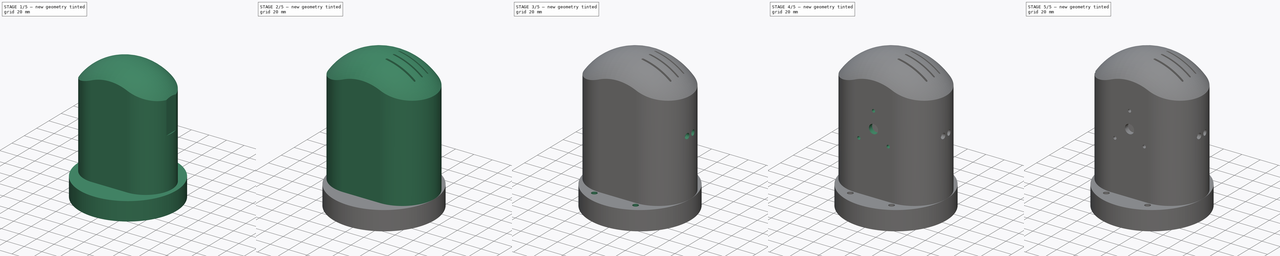
[diagram: build sequence overview — one tinted view per stage of 5, left to right]
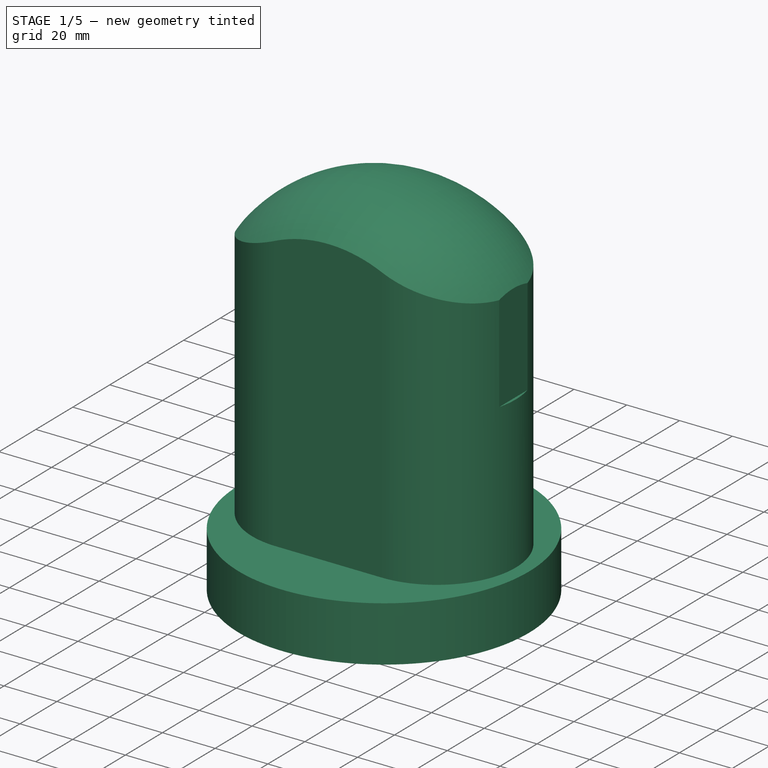
[diagram: stage 1 of 5 — iso view after this stage's code; geometry added in this stage tinted green]
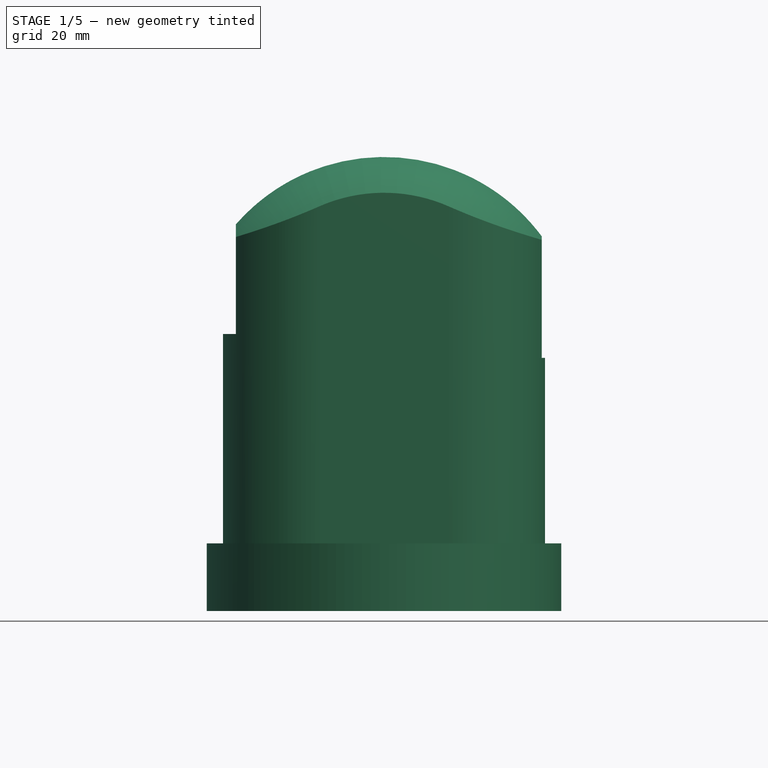
[diagram: stage 1 of 5 — front view after this stage's code; geometry added in this stage tinted green]
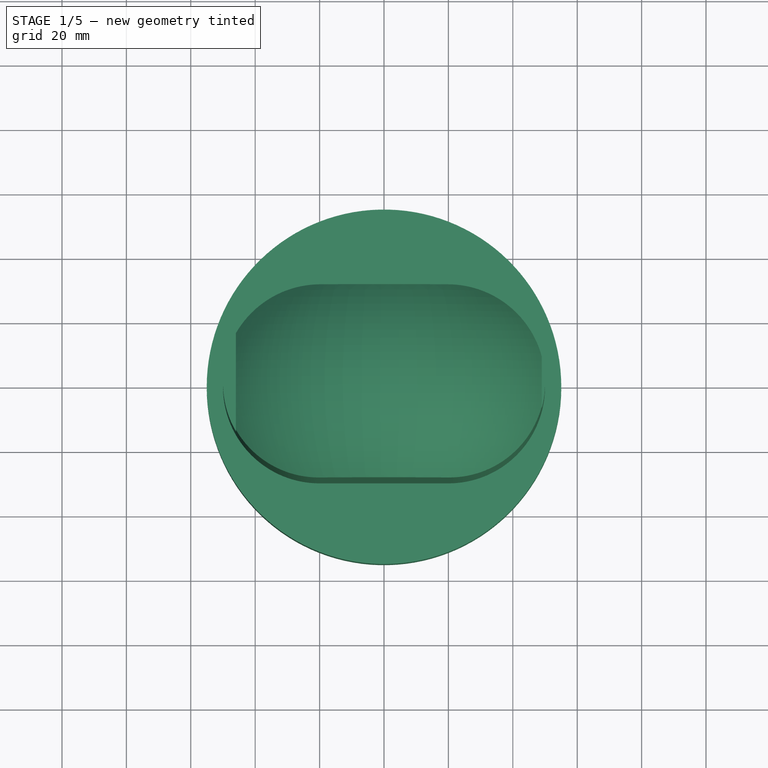
[diagram: stage 1 of 5 — top view after this stage's code; geometry added in this stage tinted green]
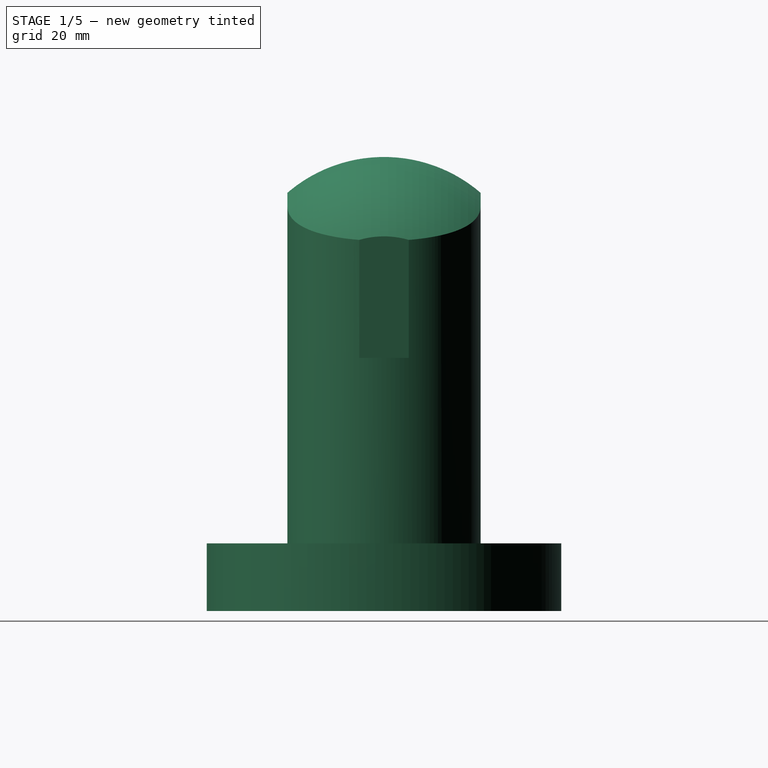
[diagram: stage 1 of 5 — right view after this stage's code; geometry added in this stage tinted green]
FCSTD DOCUMENT  (FreeCAD 0.19R24276 (Git))
Label: Art3Body
License: All rights reserved
LicenseURL: http://en.wikipedia.org/wiki/All_rights_reserved
objects: Sketcher::SketchObject×30, PartDesign::Pocket×19, PartDesign::Line×19, PartDesign::CoordinateSystem×9, PartDesign::Pad×8, PartDesign::Plane×7, PartDesign::Body×3, PartDesign::Groove×2, Part::Cut×1, Spreadsheet::Sheet×1, PartDesign::FeatureBase×1, PartDesign::Revolution×1, PartDesign::Draft×1
note: 132 computed .brp shape members not serialized (recipe doc carries the construction recipe); baked Part::Feature solids carry a one-line shape summary decoded from their .brp

FEATURE [PartDesign::Plane] DatumPlane
  AttachmentOffset = pos=(0,0,86.5) rot=(0,0,1;0rad)
  Length = 60
  MapMode = 5
  Placement = pos=(0,0,86.5) rot=(0,0,1;0rad)
  ResizeMode = 0
  Support = -> [XY_Plane]
  Width = 60
FEATURE [Sketcher::SketchObject] Sketch001
  FullyConstrained = true
  MapMode = 5
  Placement = pos=(0,0,86.5) rot=(0,0,1;0rad)
  Support = -> [DatumPlane]
  sketch-geometry (6):
    g0: ArcOfCircle CenterX=-20 CenterY=0 CenterZ=0 NormalX=0 NormalY=0 NormalZ=1 AngleXU=0 Radius=46 StartAngle=1.5708 EndAngle=4.71239
    g1: LineSegment StartX=-20 StartY=46 StartZ=0 EndX=-20 EndY=51 EndZ=0
    g2: LineSegment StartX=-20 StartY=51 StartZ=0 EndX=-120 EndY=51 EndZ=0
    g3: LineSegment StartX=-120 StartY=51 StartZ=0 EndX=-120 EndY=-51 EndZ=0
    g4: LineSegment StartX=-120 StartY=-51 StartZ=0 EndX=-20 EndY=-51 EndZ=0
    g5: LineSegment StartX=-20 StartY=-51 StartZ=0 EndX=-20 EndY=-46 EndZ=0
  constraints (19):
    c: Vertical(g1)
    c: Coincident(g1,g2)
    c: Horizontal(g2)
    c: Coincident(g2,g3)
    c: Vertical(g3)
    c: Coincident(g3,g4)
    c: Horizontal(g4)
    c: Coincident(g4,g5)
    c: Equal(g5,g1)
    c: Coincident(g1,g0)
    c: DistanceX(g0,g-1) = 20
    c: DistanceX(g4,g4) = 100
    c: PointOnObject(g0,g-1)
    c: Coincident(g0,g5)
    c: PointOnObject(g0,g1)
    c: Radius(g0) = 46
    c: DistanceY(g5,g5) = 5
    c: Vertical(g5)
    c: Equal(g4,g2)
FEATURE [Sketcher::SketchObject] Sketch002
  FullyConstrained = true
  MapMode = 5
  Support = -> [XY_Plane]
  sketch-geometry (1):
    g0: Circle CenterX=0 CenterY=0 CenterZ=0 NormalX=0 NormalY=0 NormalZ=1 AngleXU=0 Radius=55.05
  constraints (2):
    c: Coincident(g0,g-1)
    c: Radius(g0) = 55.05
FEATURE [PartDesign::Pad] Pad
  Direction = (1,1,1)
  Length = 21
  Length2 = 100
  Profile = -> Sketch002
  Refine = true
  Type = 0
FEATURE [PartDesign::Body] Body
  Group = -> [Sketch,DatumPlane,Sketch001,Sketch002,Pad,Pad001,Groove]
  Origin = -> Origin
  Tip = -> Groove
FEATURE [Sketcher::SketchObject] Sketch003
  FullyConstrained = true
  MapMode = 5
  Support = -> [XY_Plane001]
  sketch-geometry (1):
    g0: Circle CenterX=0 CenterY=0 CenterZ=0 NormalX=0 NormalY=0 NormalZ=1 AngleXU=0 Radius=50.2
  constraints (2):
    c: Coincident(g0,g-1)
    c: Radius(g0) = 50.2
FEATURE [PartDesign::Pad] Pad002
  Direction = (1,1,1)
  Length = 7
  Length2 = 100
  Profile = -> Sketch003
  Refine = true
  Type = 0
FEATURE [Sketcher::SketchObject] Sketch004
  FullyConstrained = true
  MapMode = 5
  Placement = pos=(0,0,7) rot=(0,0,1;0rad)
  Support = -> [Pad002]
  sketch-geometry (4):
    g0: ArcOfCircle CenterX=0 CenterY=0 CenterZ=0 NormalX=0 NormalY=0 NormalZ=1 AngleXU=0 Radius=40.5 StartAngle=1.69457 EndAngle=7.73021
    g1: LineSegment StartX=-5 StartY=40.1902 StartZ=0 EndX=-5 EndY=47 EndZ=0
    g2: LineSegment StartX=-5 StartY=47 StartZ=0 EndX=5 EndY=47 EndZ=0
    g3: LineSegment StartX=5 StartY=47 StartZ=0 EndX=5 EndY=40.1902 EndZ=0
  constraints (11):
    c: Vertical(g1)
    c: Coincident(g1,g2)
    c: Coincident(g2,g3)
    c: Vertical(g3)
    c: Coincident(g3,g0)
    c: Coincident(g0,g1)
    c: Symmetric(g2,g1,g-2)
    c: DistanceX(g2,g2) = 10
    c: DistanceY(g-1,g2) = 47
    c: Coincident(g0,g-1)
    c: Radius(g0) = 40.5
FEATURE [PartDesign::Pad] Pad003
  BaseFeature = -> Pad002
  Direction = (1,1,1)
  Length = 6
  Length2 = 100
  Profile = -> Sketch004
  Refine = true
  Type = 0
FEATURE [Sketcher::SketchObject] Sketch005
  FullyConstrained = true
  MapMode = 5
  Placement = pos=(0,0,7) rot=(0,0,1;0rad)
  Support = -> [Pad003]
  sketch-geometry (4):
    g0: ArcOfCircle CenterX=-20 CenterY=0 CenterZ=0 NormalX=0 NormalY=0 NormalZ=1 AngleXU=0 Radius=30 StartAngle=1.5708 EndAngle=4.71239
    g1: ArcOfCircle CenterX=20 CenterY=0 CenterZ=0 NormalX=0 NormalY=0 NormalZ=1 AngleXU=0 Radius=30 StartAngle=4.71239 EndAngle=7.85398
    g2: LineSegment StartX=-20 StartY=-30 StartZ=0 EndX=20 EndY=-30 EndZ=0
    g3: LineSegment StartX=-20 StartY=30 StartZ=0 EndX=20 EndY=30 EndZ=0
  constraints (9):
    c: Tangent(g0,g3) = 1.5708
    c: Tangent(g0,g2) = -1.5708
    c: Tangent(g2,g1) = -1.5708
    c: Tangent(g3,g1) = 1.5708
    c: Horizontal(g2)
    c: PointOnObject(g0,g-1)
    c: DistanceX(g2,g2) = 40
    c: Symmetric(g1,g0,g-2)
    c: Radius(g0) = 30
FEATURE [PartDesign::Pad] Pad004
  BaseFeature = -> Pad003
  Direction = (1,1,1)
  Length = 139
  Length2 = 100
  Profile = -> Sketch005
  Refine = true
  Type = 0
FEATURE [PartDesign::Plane] DatumPlane001
  AttachmentOffset = pos=(0,0,80) rot=(0,0,1;0rad)
  Length = 120.446
  MapMode = 5
  Placement = pos=(0,0,80) rot=(0,0,1;0rad)
  ResizeMode = 0
  Support = -> [XY_Plane001]
  Width = 120.103
FEATURE [Sketcher::SketchObject] Sketch006
  FullyConstrained = true
  MapMode = 5
  Placement = pos=(0,0,80) rot=(0,0,1;0rad)
  Support = -> [DatumPlane001]
  sketch-geometry (6):
    g0: ArcOfCircle CenterX=-15 CenterY=0 CenterZ=0 NormalX=0 NormalY=0 NormalZ=1 AngleXU=0 Radius=46 StartAngle=1.5708 EndAngle=4.71239
    g1: LineSegment StartX=-15 StartY=46 StartZ=0 EndX=-15 EndY=51 EndZ=0
    g2: LineSegment StartX=-15 StartY=51 StartZ=0 EndX=-115 EndY=51 EndZ=0
    g3: LineSegment StartX=-115 StartY=51 StartZ=0 EndX=-115 EndY=-51 EndZ=0
    g4: LineSegment StartX=-115 StartY=-51 StartZ=0 EndX=-15 EndY=-51 EndZ=0
    g5: LineSegment StartX=-15 StartY=-51 StartZ=0 EndX=-15 EndY=-46 EndZ=0
  constraints (19):
    c: Vertical(g1)
    c: Coincident(g1,g2)
    c: Horizontal(g2)
    c: Coincident(g2,g3)
    c: Vertical(g3)
    c: Coincident(g3,g4)
    c: Horizontal(g4)
    c: Coincident(g4,g5)
    c: Coincident(g5,g0)
    c: Vertical(g5)
    c: Equal(g5,g1)
    c: Coincident(g1,g0)
    c: Equal(g2,g4)
    c: Radius(g0) = 46
    c: DistanceY(g1,g1) = 5
    c: DistanceX(g4,g4) = 100
    c: DistanceX(g0,g-1) = 15
    c: PointOnObject(g0,g5)
    c: PointOnObject(g0,g-1)
FEATURE [PartDesign::Groove] Groove001
  Angle = 180
  Axis = (0,1,0)
  Base = (0,0,80)
  BaseFeature = -> Pad004
  Profile = -> Sketch006
  ReferenceAxis = -> Sketch006 [V_Axis]
  Refine = true
FEATURE [PartDesign::Plane] DatumPlane002
  AttachmentOffset = pos=(0,0,140) rot=(0,0,1;0rad)
  Length = 120.446
  MapMode = 5
  Placement = pos=(0,0,140) rot=(0,0,1;0rad)
  ResizeMode = 0
  Support = -> [XY_Plane001]
  Width = 120.103
FEATURE [Sketcher::SketchObject] Sketch007
  FullyConstrained = true
  MapMode = 5
  Placement = pos=(0,0,140) rot=(0,0,1;0rad)
  Support = -> [DatumPlane002]
  sketch-geometry (4):
    g0: LineSegment StartX=-56 StartY=25 StartZ=0 EndX=-46 EndY=25 EndZ=0
    g1: LineSegment StartX=-46 StartY=25 StartZ=0 EndX=-46 EndY=-25 EndZ=0
    g2: LineSegment StartX=-46 StartY=-25 StartZ=0 EndX=-56 EndY=-25 EndZ=0
    g3: LineSegment StartX=-56 StartY=-25 StartZ=0 EndX=-56 EndY=25 EndZ=0
  constraints (11):
    c: Coincident(g0,g1)
    c: Coincident(g1,g2)
    c: Coincident(g2,g3)
    c: Coincident(g3,g0)
    c: Horizontal(g0)
    c: Horizontal(g2)
    c: Vertical(g3)
    c: Symmetric(g1,g0,g-1)
    c: DistanceX(g1,g-1) = 46
    c: DistanceX(g2,g2) = 10
    c: DistanceY(g3,g3) = 50
FEATURE [PartDesign::Pocket] Pocket
  BaseFeature = -> Groove001
  Length = 54
  Length2 = 100
  Profile = -> Sketch007
  Refine = true
  Type = 0
FEATURE [Sketcher::SketchObject] Sketch008
  FullyConstrained = true
  MapMode = 5
  Placement = pos=(0,0,140) rot=(0,0,1;0rad)
  Support = -> [DatumPlane002]
  sketch-geometry (4):
    g0: LineSegment StartX=59 StartY=25 StartZ=0 EndX=49 EndY=25 EndZ=0
    g1: LineSegment StartX=49 StartY=25 StartZ=0 EndX=49 EndY=-25 EndZ=0
    g2: LineSegment StartX=49 StartY=-25 StartZ=0 EndX=59 EndY=-25 EndZ=0
    g3: LineSegment StartX=59 StartY=-25 StartZ=0 EndX=59 EndY=25 EndZ=0
  constraints (11):
    c: Coincident(g0,g1)
    c: Coincident(g1,g2)
    c: Coincident(g2,g3)
    c: Coincident(g3,g0)
    c: Horizontal(g0)
    c: Horizontal(g2)
    c: Vertical(g1)
    c: DistanceY(g3,g3) = 50
    c: DistanceX(g2,g2) = 10
    c: DistanceX(g-1,g1) = 49
    c: Symmetric(g2,g0,g-1)
FEATURE [PartDesign::Pocket] Pocket001
  BaseFeature = -> Pocket
  Length = 61.4
  Length2 = 100
  Profile = -> Sketch008
  Refine = true
  Type = 0
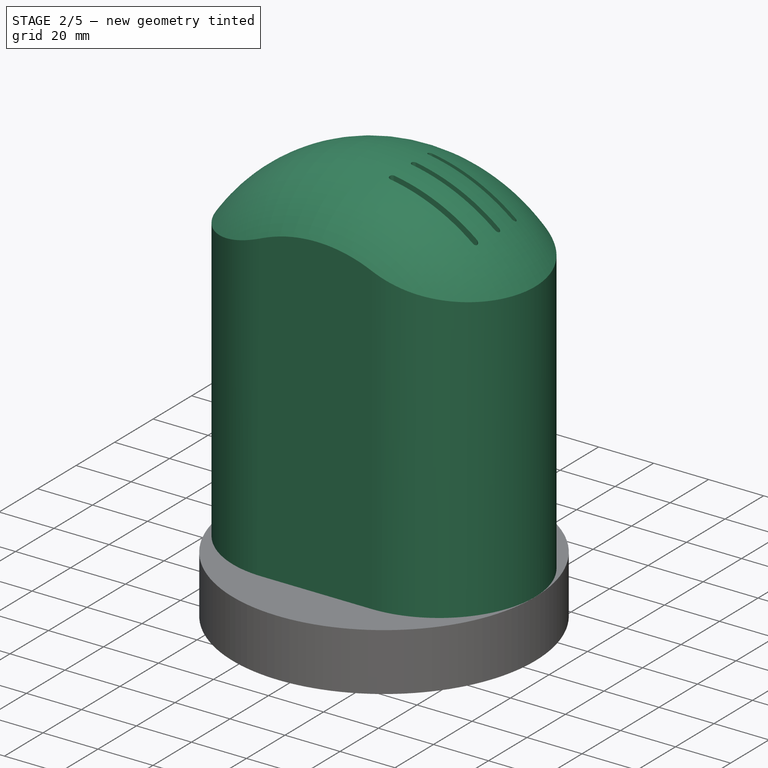
[diagram: stage 2 of 5 — iso view after this stage's code; geometry added in this stage tinted green]
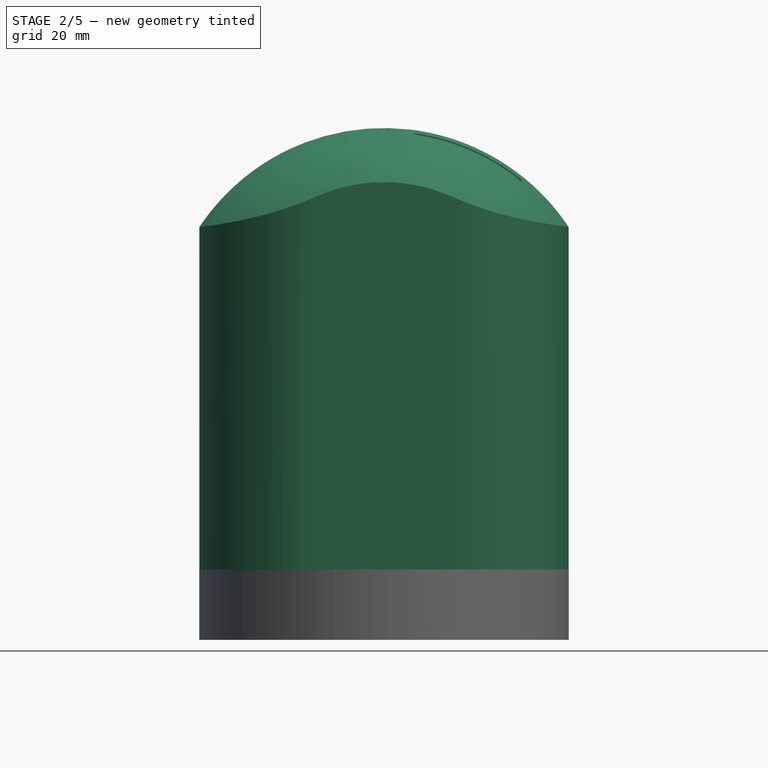
[diagram: stage 2 of 5 — front view after this stage's code; geometry added in this stage tinted green]
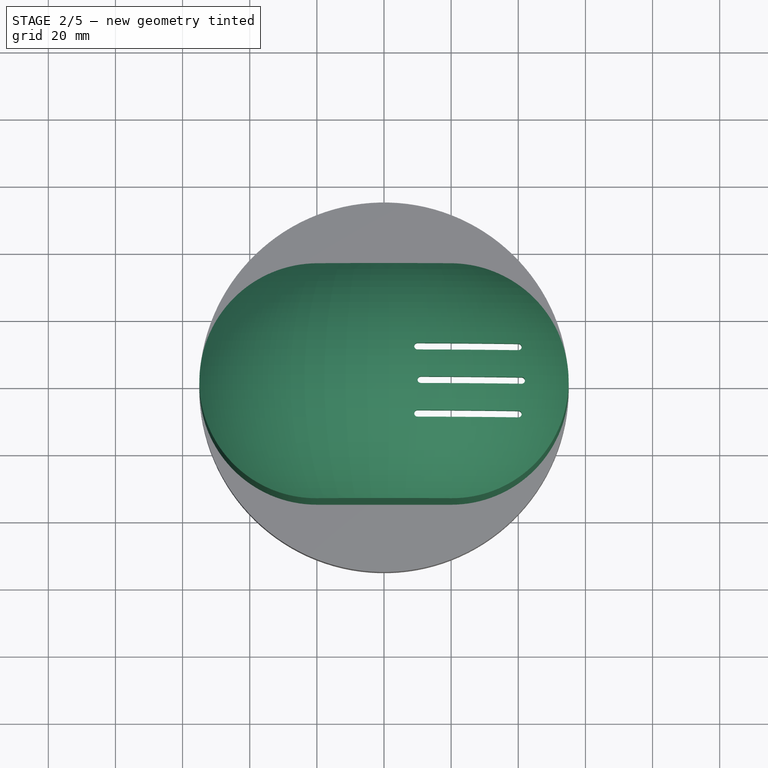
[diagram: stage 2 of 5 — top view after this stage's code; geometry added in this stage tinted green]
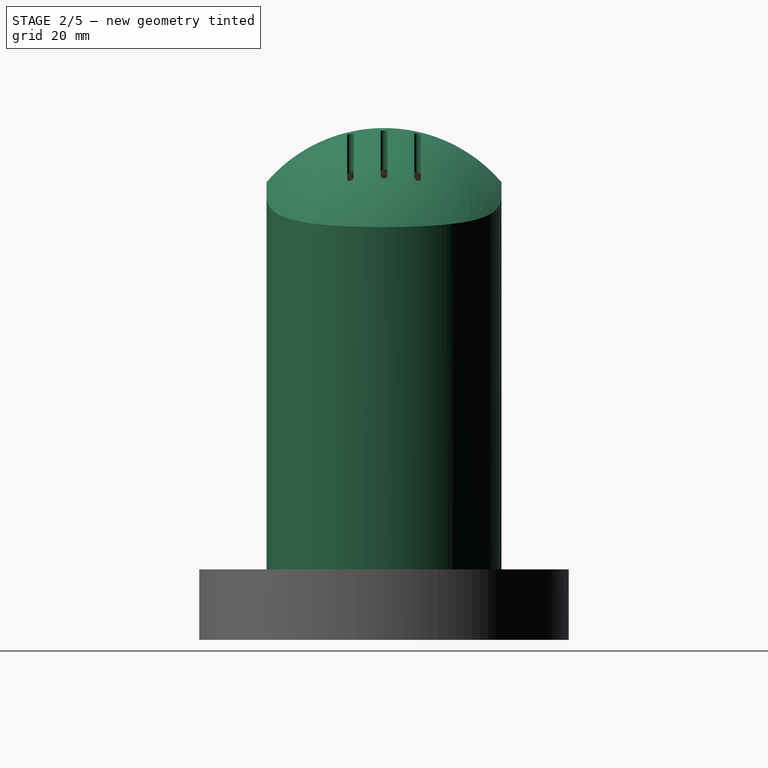
[diagram: stage 2 of 5 — right view after this stage's code; geometry added in this stage tinted green]
FEATURE [Sketcher::SketchObject] Sketch
  AttachmentOffset = pos=(0,0,21) rot=(0,0,1;0rad)
  FullyConstrained = true
  MapMode = 5
  Placement = pos=(0,0,21) rot=(0,0,1;0rad)
  Support = -> [XY_Plane,Pad]
  sketch-geometry (4):
    g0: ArcOfCircle CenterX=-20 CenterY=0 CenterZ=0 NormalX=0 NormalY=0 NormalZ=1 AngleXU=0 Radius=35 StartAngle=1.5708 EndAngle=4.71239
    g1: ArcOfCircle CenterX=20 CenterY=0 CenterZ=0 NormalX=0 NormalY=0 NormalZ=1 AngleXU=0 Radius=35 StartAngle=4.71239 EndAngle=7.85398
    g2: LineSegment StartX=-20 StartY=-35 StartZ=0 EndX=20 EndY=-35 EndZ=0
    g3: LineSegment StartX=-20 StartY=35 StartZ=0 EndX=20 EndY=35 EndZ=0
  constraints (9):
    c: Tangent(g0,g3) = 1.5708
    c: Tangent(g0,g2) = -1.5708
    c: Tangent(g2,g1) = -1.5708
    c: Tangent(g3,g1) = 1.5708
    c: Horizontal(g2)
    c: PointOnObject(g0,g-1)
    c: Symmetric(g1,g0,g-2)
    c: DistanceX(g2,g2) = 40
    c: Radius(g1) = 35
FEATURE [PartDesign::Pad] Pad001
  BaseFeature = -> Pad
  Direction = (1,1,1)
  Length = 131.5
  Length2 = 100
  Profile = -> Sketch
  Refine = true
  Type = 0
FEATURE [PartDesign::Groove] Groove
  Angle = 180
  Axis = (0,1,0)
  Base = (0,0,86.5)
  BaseFeature = -> Pad001
  Profile = -> Sketch001
  ReferenceAxis = -> Sketch001 [V_Axis]
  Refine = true
FEATURE [PartDesign::Body] Body001
  Group = -> [Sketch003,Pad002,Sketch004,Pad003,Sketch005,Pad004,DatumPlane001,Sketch006,Groove001,DatumPlane002,Sketch007,Pocket,Sketch008,Pocket001]
  Origin = -> Origin001
  Tip = -> Pocket001
FEATURE [Part::Cut] Cut
  Base = -> Body
  Refine = true
  Tool = -> Body001
FEATURE [Spreadsheet::Sheet] Spreadsheet
  cells = A2=M3BoltBodyRadius; B2(M3BoltBodyRadius)=1.7; A3=M3BoltHeadRadius; B3(M3BoltHeadRadius)=2.95; A4=M3NutCircumradius; B4(M3NutCircumradius)=3.35; A5=M3NutThickness; B5(M3NutThickness)=3; A6=Bearing655ZZBodyRadius; B6(Bearing655ZZBodyRadius)=8.199999999999999
FEATURE [PartDesign::FeatureBase] BaseFeature
  BaseFeature = -> Cut
FEATURE [Sketcher::SketchObject] Sketch009
  FullyConstrained = true
  MapMode = 5
  Support = -> [XY_Plane002]
  sketch-geometry (12):
    g0: ArcOfCircle CenterX=11 CenterY=0 CenterZ=0 NormalX=0 NormalY=0 NormalZ=1 AngleXU=0 Radius=1 StartAngle=1.5708 EndAngle=4.71239
    g1: ArcOfCircle CenterX=41 CenterY=-1e-16 CenterZ=0 NormalX=0 NormalY=0 NormalZ=1 AngleXU=0 Radius=1 StartAngle=4.71239 EndAngle=7.85398
    g2: LineSegment StartX=11 StartY=-1 StartZ=0 EndX=41 EndY=-1 EndZ=0
    g3: LineSegment StartX=11 StartY=1 StartZ=0 EndX=41 EndY=1 EndZ=0
    g4: ArcOfCircle CenterX=10 CenterY=10 CenterZ=0 NormalX=0 NormalY=0 NormalZ=1 AngleXU=0 Radius=1 StartAngle=1.5708 EndAngle=4.71239
    g5: ArcOfCircle CenterX=40 CenterY=10 CenterZ=0 NormalX=0 NormalY=0 NormalZ=1 AngleXU=0 Radius=1 StartAngle=4.71239 EndAngle=7.85398
    g6: LineSegment StartX=10 StartY=9 StartZ=0 EndX=40 EndY=9 EndZ=0
    g7: LineSegment StartX=10 StartY=11 StartZ=0 EndX=40 EndY=11 EndZ=0
    g8: ArcOfCircle CenterX=10 CenterY=-10 CenterZ=0 NormalX=0 NormalY=0 NormalZ=1 AngleXU=0 Radius=1 StartAngle=1.5708 EndAngle=4.71239
    g9: ArcOfCircle CenterX=40 CenterY=-10 CenterZ=0 NormalX=0 NormalY=0 NormalZ=1 AngleXU=0 Radius=1 StartAngle=4.71239 EndAngle=7.85398
    g10: LineSegment StartX=10 StartY=-11 StartZ=0 EndX=40 EndY=-11 EndZ=0
    g11: LineSegment StartX=10 StartY=-9 StartZ=0 EndX=40 EndY=-9 EndZ=0
  constraints (29):
    c: Tangent(g0,g3) = 1.5708
    c: Tangent(g0,g2) = -1.5708
    c: Tangent(g2,g1) = -1.5708
    c: Tangent(g3,g1) = 1.5708
    c: Horizontal(g2)
    c: Equal(g0,g1)
    c: PointOnObject(g0,g-1)
    c: Tangent(g4,g7) = 1.5708
    c: Tangent(g4,g6) = -1.5708
    c: Tangent(g6,g5) = -1.5708
    c: Tangent(g7,g5) = 1.5708
    c: Horizontal(g6)
    c: Equal(g4,g5)
    c: Tangent(g8,g11) = 1.5708
    c: Tangent(g8,g10) = -1.5708
    c: Tangent(g10,g9) = -1.5708
    c: Tangent(g11,g9) = 1.5708
    c: Horizontal(g10)
    c: Equal(g8,g9)
    c: Equal(g9,g1)
    c: Equal(g1,g5)
    c: Equal(g3,g6)
    c: Equal(g6,g11)
    c: DistanceX(g8,g0) = 1
    c: Symmetric(g8,g4,g-1)
    c: DistanceX(g2,g2) = 30
    c: Radius(g8) = 1
    c: DistanceY(g0,g4) = 10
    c: DistanceX(g-1,g8) = 10
FEATURE [PartDesign::Pocket] Pocket002
  BaseFeature = -> BaseFeature
  Length = 5
  Length2 = 100
  Profile = -> Sketch009
  Refine = true
  Reversed = true
  Type = 1
FEATURE [Sketcher::SketchObject] Sketch010
  ExternalGeometry = -> [Pocket002]
  FullyConstrained = true
  MapMode = 5
  Placement = pos=(0,0,78.6) rot=(1,0,0;3.14159rad)
  Support = -> [Pocket002]
  sketch-geometry (6):
    g0: LineSegment StartX=49 StartY=-18.25 StartZ=0 EndX=49 EndY=18.25 EndZ=0
    g1: LineSegment StartX=49 StartY=18.25 StartZ=0 EndX=46 EndY=21.25 EndZ=0
    g2: LineSegment StartX=46 StartY=21.25 StartZ=0 EndX=36 EndY=21.25 EndZ=0
    g3: LineSegment StartX=36 StartY=21.25 StartZ=0 EndX=36 EndY=-21.25 EndZ=0
    g4: LineSegment StartX=36 StartY=-21.25 StartZ=0 EndX=46 EndY=-21.25 EndZ=0
    g5: LineSegment StartX=46 StartY=-21.25 StartZ=0 EndX=49 EndY=-18.25 EndZ=0
  constraints (16):
    c: Coincident(g0,g1)
    c: Coincident(g1,g2)
    c: Horizontal(g2)
    c: Coincident(g2,g3)
    c: Vertical(g3)
    c: Coincident(g3,g4)
    c: Horizontal(g4)
    c: Coincident(g4,g5)
    c: Coincident(g5,g0)
    c: Symmetric(g4,g1,g-1)
    c: Symmetric(g0,g0,g-1)
    c: DistanceX(g4,g4) = 10
    c: Angle(g5,g4) = 2.35619
    c: DistanceX(g5,g5) = 3
    c: DistanceY(g0,g0) = 36.5
    c: PointOnObject(g-3,g0)
FEATURE [PartDesign::Pocket] Pocket003
  BaseFeature = -> Pocket002
  Length = 45
  Length2 = 100
  Profile = -> Sketch010
  Refine = true
  Type = 0
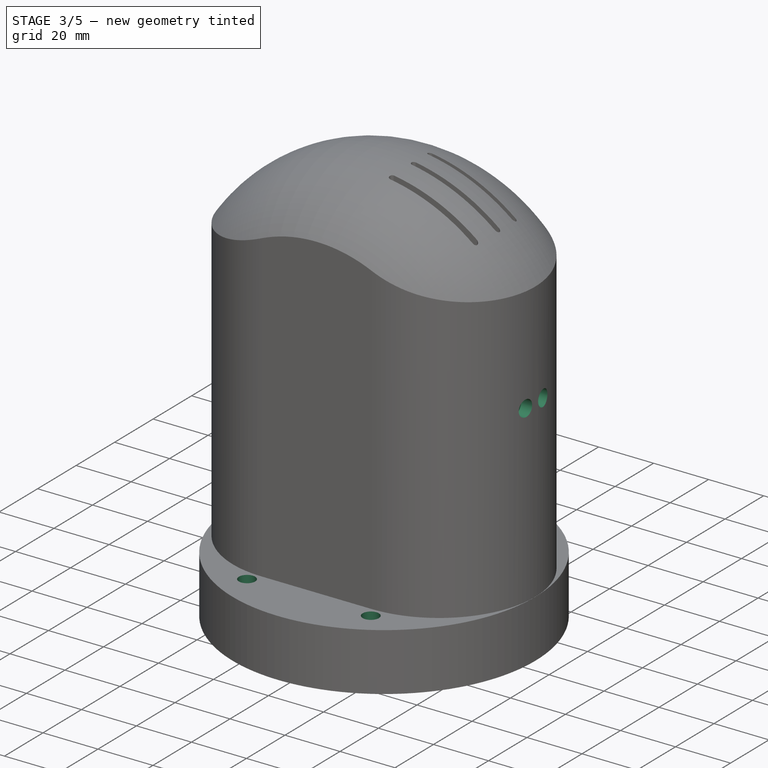
[diagram: stage 3 of 5 — iso view after this stage's code; geometry added in this stage tinted green]
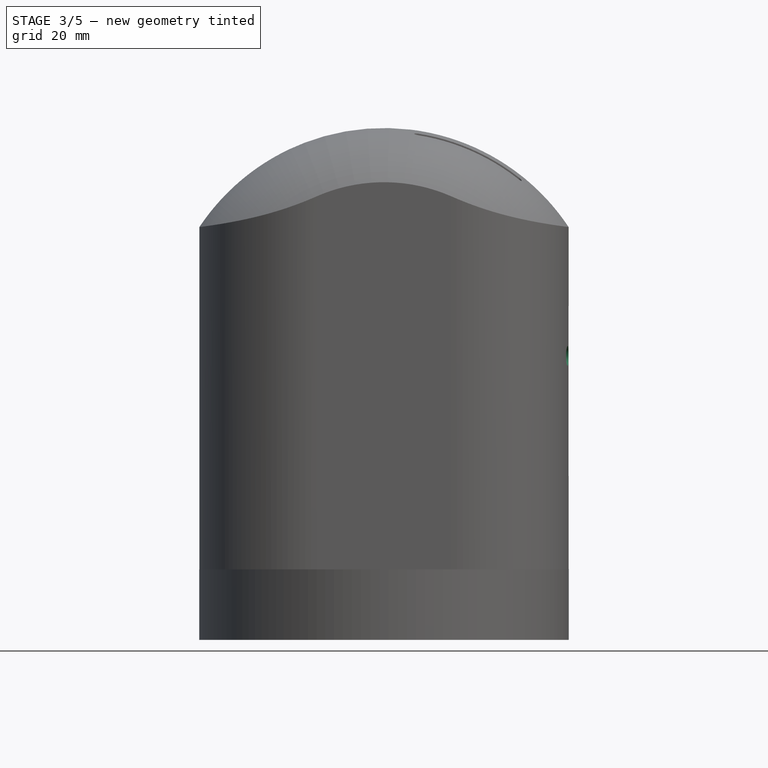
[diagram: stage 3 of 5 — front view after this stage's code; geometry added in this stage tinted green]
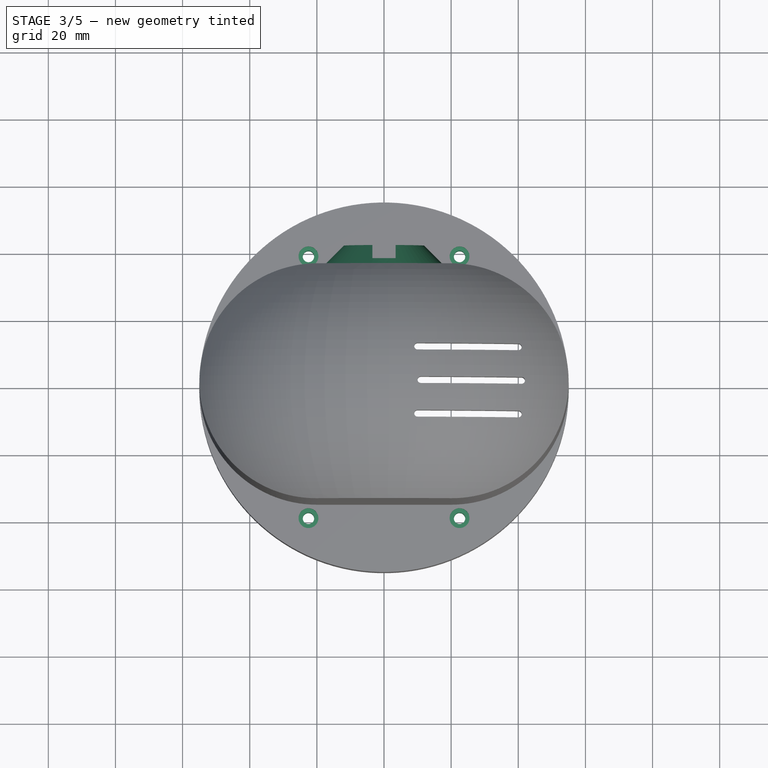
[diagram: stage 3 of 5 — top view after this stage's code; geometry added in this stage tinted green]
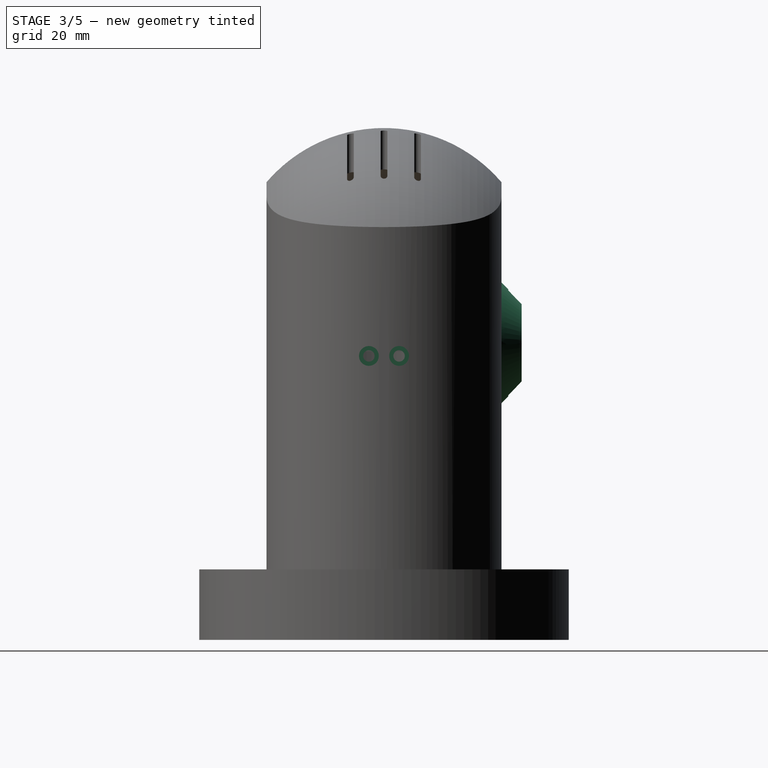
[diagram: stage 3 of 5 — right view after this stage's code; geometry added in this stage tinted green]
FEATURE [Sketcher::SketchObject] Sketch011
  FullyConstrained = true
  MapMode = 5
  Placement = pos=(49,0,0) rot=(0.57735,-0.57735,-0.57735;2.0944rad)
  Support = -> [Pocket003]
  expr: Constraints[1] = Spreadsheet.M3BoltBodyRadius
  sketch-geometry (2):
    g0: Circle CenterX=-4.5 CenterY=84.6 CenterZ=0 NormalX=0 NormalY=0 NormalZ=1 AngleXU=0 Radius=1.7
    g1: Circle CenterX=4.5 CenterY=84.6 CenterZ=0 NormalX=0 NormalY=0 NormalZ=1 AngleXU=0 Radius=1.7
  constraints (5):
    c: Equal(g1,g0)
    c: Radius(g0) = 1.7
    c: DistanceX(g0,g1) = 9
    c: DistanceY(g-1,g0) = 84.6
    c: Symmetric(g0,g1,g-2)
FEATURE [PartDesign::Pocket] Pocket004
  BaseFeature = -> Pocket003
  Length = 5
  Length2 = 100
  Profile = -> Sketch011
  Refine = true
  Type = 1
FEATURE [PartDesign::Plane] DatumPlane003
  AttachmentOffset = pos=(0,0,55) rot=(0,0,1;0rad)
  Length = 138.04
  MapMode = 5
  Placement = pos=(55,-1.22e-14,1.22e-14) rot=(0.57735,0.57735,0.57735;2.0944rad)
  ResizeMode = 0
  Support = -> [YZ_Plane002]
  Width = 205.454
FEATURE [Sketcher::SketchObject] Sketch012
  ExternalGeometry = -> [Pocket004]
  FullyConstrained = true
  MapMode = 5
  Placement = pos=(55,-1.22e-14,1.22e-14) rot=(0.57735,0.57735,0.57735;2.0944rad)
  Support = -> [DatumPlane003]
  expr: Constraints[3] = Spreadsheet.M3BoltHeadRadius
  sketch-geometry (2):
    g0: Circle CenterX=-4.5 CenterY=84.6 CenterZ=0 NormalX=0 NormalY=0 NormalZ=1 AngleXU=0 Radius=2.95
    g1: Circle CenterX=4.5 CenterY=84.6 CenterZ=0 NormalX=0 NormalY=0 NormalZ=1 AngleXU=0 Radius=2.95
  constraints (4):
    c: Coincident(g0,g-3)
    c: Coincident(g1,g-4)
    c: Equal(g0,g1)
    c: Radius(g0) = 2.95
FEATURE [PartDesign::Pocket] Pocket005
  BaseFeature = -> Pocket004
  Length = 4
  Length2 = 100
  Profile = -> Sketch012
  Refine = true
  Type = 0
FEATURE [Sketcher::SketchObject] Sketch013
  FullyConstrained = true
  MapMode = 5
  Placement = pos=(0,0,7) rot=(1,0,0;3.14159rad)
  Support = -> [Pocket005]
  expr: Constraints[17] = Spreadsheet.M3BoltBodyRadius
  sketch-geometry (8):
    g0: LineSegment StartX=-22.5 StartY=39 StartZ=0 EndX=22.5 EndY=39 EndZ=0
    g1: LineSegment StartX=22.5 StartY=39 StartZ=0 EndX=22.5 EndY=-39 EndZ=0
    g2: LineSegment StartX=22.5 StartY=-39 StartZ=0 EndX=-22.5 EndY=-39 EndZ=0
    g3: LineSegment StartX=-22.5 StartY=-39 StartZ=0 EndX=-22.5 EndY=39 EndZ=0
    g4: Circle CenterX=-22.5 CenterY=39 CenterZ=0 NormalX=0 NormalY=0 NormalZ=1 AngleXU=0 Radius=1.7
    g5: Circle CenterX=22.5 CenterY=39 CenterZ=0 NormalX=0 NormalY=0 NormalZ=1 AngleXU=0 Radius=1.7
    g6: Circle CenterX=22.5 CenterY=-39 CenterZ=0 NormalX=0 NormalY=0 NormalZ=1 AngleXU=0 Radius=1.7
    g7: Circle CenterX=-22.5 CenterY=-39 CenterZ=0 NormalX=0 NormalY=0 NormalZ=1 AngleXU=0 Radius=1.7
  constraints (18):
    c: Coincident(g0,g1)
    c: Coincident(g1,g2)
    c: Coincident(g2,g3)
    c: Coincident(g3,g0)
    c: Horizontal(g0)
    c: Vertical(g3)
    c: Symmetric(g1,g2,g-2)
    c: Symmetric(g1,g0,g-1)
    c: DistanceX(g0,g0) = 45
    c: DistanceY(g3,g3) = 78
    c: Coincident(g4,g0)
    c: Coincident(g5,g0)
    c: Coincident(g6,g1)
    c: Coincident(g7,g2)
    c: Equal(g7,g6)
    c: Equal(g6,g5)
    c: Equal(g5,g4)
    c: Radius(g4) = 1.7
FEATURE [PartDesign::Pocket] Pocket006
  BaseFeature = -> Pocket005
  Length = 5
  Length2 = 100
  Profile = -> Sketch013
  Refine = true
  Type = 1
FEATURE [Sketcher::SketchObject] Sketch014
  ExternalGeometry = -> [Pocket006]
  FullyConstrained = true
  MapMode = 5
  Placement = pos=(0,0,21) rot=(0,0,1;0rad)
  Support = -> [Pocket006]
  expr: Constraints[7] = Spreadsheet.M3BoltHeadRadius
  sketch-geometry (4):
    g0: Circle CenterX=-22.5 CenterY=39 CenterZ=0 NormalX=0 NormalY=0 NormalZ=1 AngleXU=0 Radius=2.95
    g1: Circle CenterX=22.5 CenterY=39 CenterZ=0 NormalX=0 NormalY=0 NormalZ=1 AngleXU=0 Radius=2.95
    g2: Circle CenterX=-22.5 CenterY=-39 CenterZ=0 NormalX=0 NormalY=0 NormalZ=1 AngleXU=0 Radius=2.95
    g3: Circle CenterX=22.5 CenterY=-39 CenterZ=0 NormalX=0 NormalY=0 NormalZ=1 AngleXU=0 Radius=2.95
  constraints (8):
    c: Coincident(g0,g-5)
    c: Coincident(g1,g-6)
    c: Coincident(g2,g-4)
    c: Coincident(g3,g-3)
    c: Equal(g3,g2)
    c: Equal(g2,g0)
    c: Equal(g0,g1)
    c: Radius(g1) = 2.95
FEATURE [PartDesign::Pocket] Pocket007
  BaseFeature = -> Pocket006
  Length = 3
  Length2 = 100
  Profile = -> Sketch014
  Refine = true
  Type = 0
FEATURE [PartDesign::Line] DatumLine
  AttacherType = Attacher::AttachEngineLine
  AttachmentOffset = pos=(0,88.5,88.5) rot=(0,0,1;0rad)
  Length = 20
  MapMode = 29
  Placement = pos=(9.8e-15,88.5,88.5) rot=(0,0.707107,0.707107;3.14159rad)
  ResizeMode = 0
  Support = -> [Y_Axis002]
FEATURE [Sketcher::SketchObject] Sketch015
  ExternalGeometry = -> [DatumLine]
  FullyConstrained = true
  MapMode = 5
  Placement = pos=(0,0,0) rot=(0.57735,0.57735,0.57735;2.0944rad)
  Support = -> [YZ_Plane002]
  sketch-geometry (4):
    g0: LineSegment StartX=35 StartY=106.5 StartZ=0 EndX=35 EndY=88.5 EndZ=0
    g1: LineSegment StartX=35 StartY=88.5 StartZ=0 EndX=41 EndY=88.5 EndZ=0
    g2: LineSegment StartX=41 StartY=88.5 StartZ=0 EndX=41 EndY=100.5 EndZ=0
    g3: LineSegment StartX=41 StartY=100.5 StartZ=0 EndX=35 EndY=106.5 EndZ=0
  constraints (12):
    c: Vertical(g0)
    c: Coincident(g0,g1)
    c: Horizontal(g1)
    c: Coincident(g1,g2)
    c: Vertical(g2)
    c: Coincident(g2,g3)
    c: Coincident(g3,g0)
    c: DistanceX(g3,g3) = 6
    c: PointOnObject(g1,g-3)
    c: DistanceY(g2,g2) = 12
    c: Angle(g0,g3) = 0.785398
    c: DistanceX(g-1,g0) = 35
FEATURE [PartDesign::Revolution] Revolution
  Angle = 360
  Axis = (1e-16,1,-2e-16)
  Base = (9.8e-15,88.5,88.5)
  BaseFeature = -> Pocket007
  Profile = -> Sketch015
  ReferenceAxis = -> DatumLine
  Refine = true
  Reversed = true
FEATURE [Sketcher::SketchObject] Sketch016
  ExternalGeometry = -> [Revolution]
  FullyConstrained = true
  MapMode = 5
  Placement = pos=(4.6e-15,41,-9.1e-15) rot=(0,0.707107,0.707107;3.14159rad)
  Support = -> [Revolution]
  expr: Constraints[1] = Spreadsheet.Bearing655ZZBodyRadius
  sketch-geometry (1):
    g0: Circle CenterX=0 CenterY=88.5 CenterZ=0 NormalX=0 NormalY=0 NormalZ=1 AngleXU=0 Radius=8.2
  constraints (2):
    c: Coincident(g0,g-3)
    c: Radius(g0) = 8.2
FEATURE [PartDesign::Pocket] Pocket008
  BaseFeature = -> Revolution
  Length = 9
  Length2 = 100
  Profile = -> Sketch016
  Refine = true
  Type = 0
FEATURE [Sketcher::SketchObject] Sketch017
  ExternalGeometry = -> [Pocket008]
  FullyConstrained = true
  MapMode = 5
  Placement = pos=(4.6e-15,41,-9.1e-15) rot=(0,0.707107,0.707107;3.14159rad)
  Support = -> [Pocket008]
  sketch-geometry (4):
    g0: LineSegment StartX=-3.45 StartY=108.5 StartZ=0 EndX=3.45 EndY=108.5 EndZ=0
    g1: LineSegment StartX=3.45 StartY=108.5 StartZ=0 EndX=3.45 EndY=68.5 EndZ=0
    g2: LineSegment StartX=3.45 StartY=68.5 StartZ=0 EndX=-3.45 EndY=68.5 EndZ=0
    g3: LineSegment StartX=-3.45 StartY=68.5 StartZ=0 EndX=-3.45 EndY=108.5 EndZ=0
  constraints (11):
    c: Coincident(g0,g1)
    c: Coincident(g1,g2)
    c: Coincident(g2,g3)
    c: Coincident(g3,g0)
    c: Horizontal(g0)
    c: Vertical(g1)
    c: Vertical(g3)
    c: Symmetric(g2,g1,g-2)
    c: DistanceX(g2,g2) = 6.9
    c: DistanceY(g1,g1) = 40
    c: DistanceY(g2,g-3) = 20
FEATURE [PartDesign::Pocket] Pocket009
  BaseFeature = -> Pocket008
  Length = 4
  Length2 = 100
  Profile = -> Sketch017
  Refine = true
  Type = 0
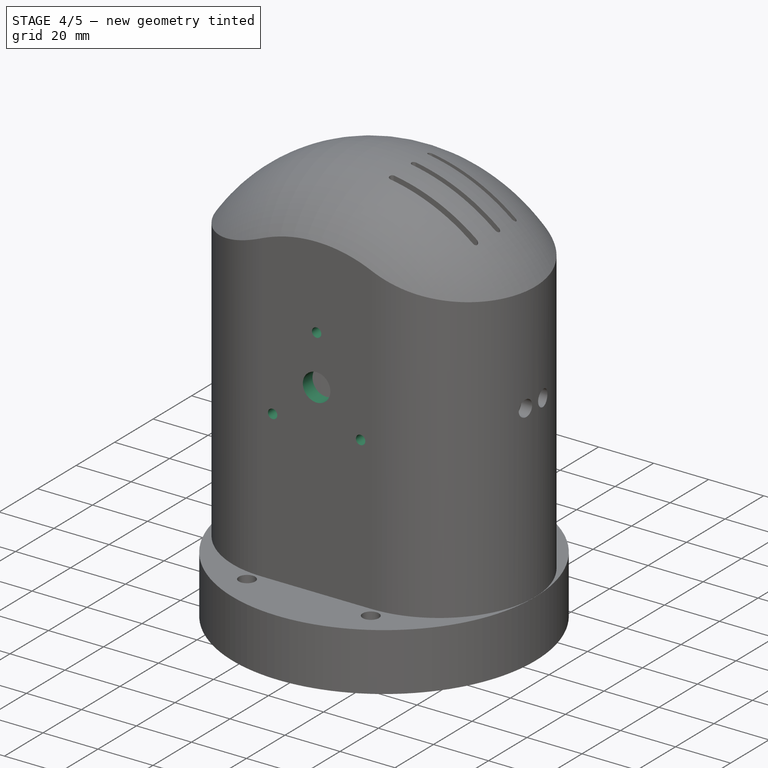
[diagram: stage 4 of 5 — iso view after this stage's code; geometry added in this stage tinted green]
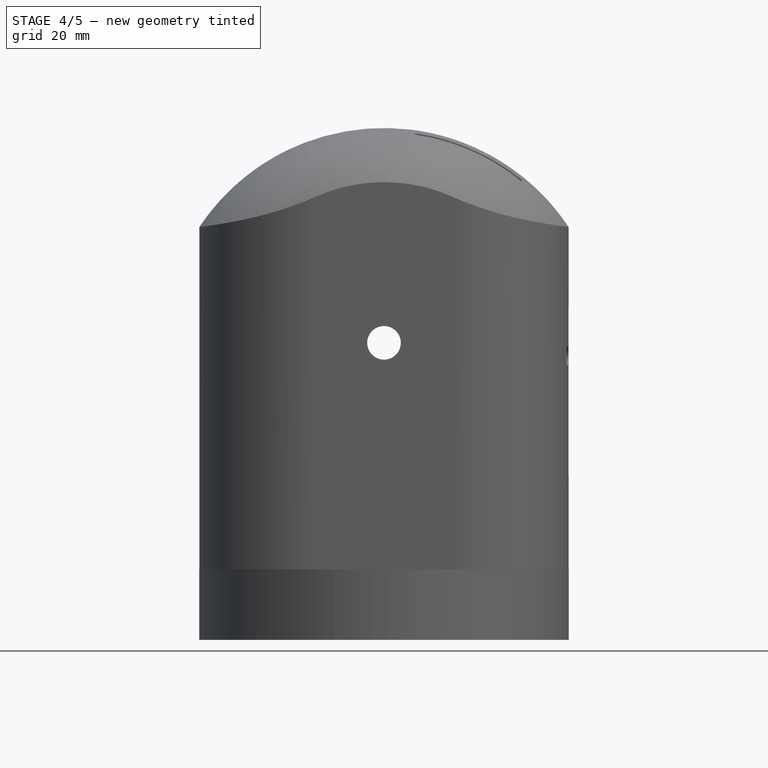
[diagram: stage 4 of 5 — front view after this stage's code; geometry added in this stage tinted green]
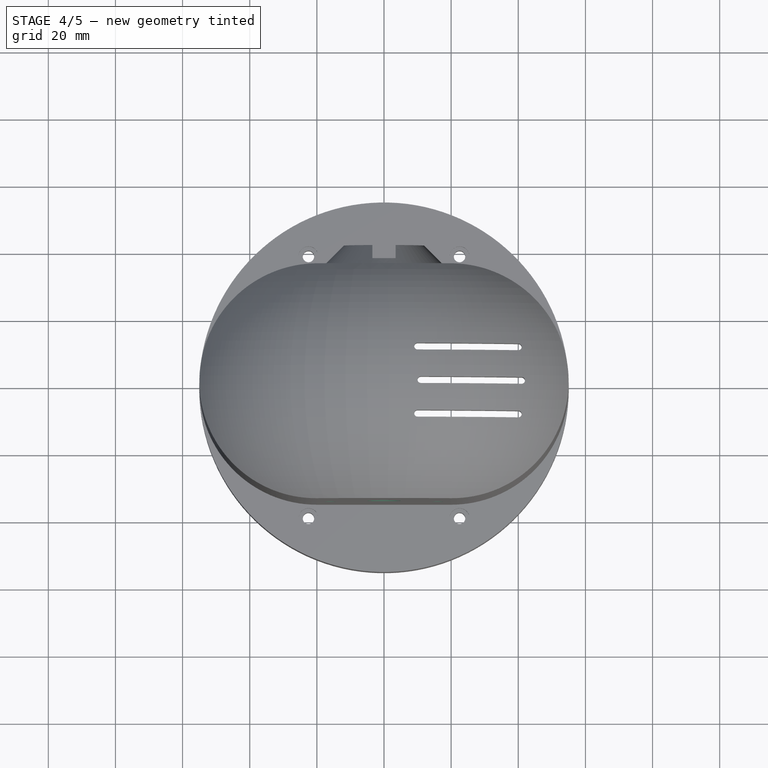
[diagram: stage 4 of 5 — top view after this stage's code; geometry added in this stage tinted green]
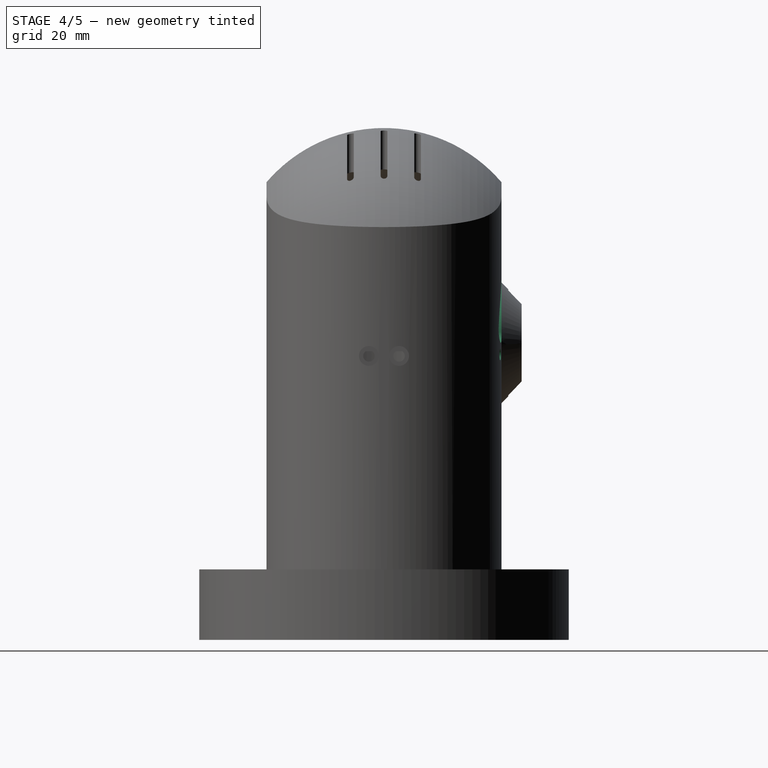
[diagram: stage 4 of 5 — right view after this stage's code; geometry added in this stage tinted green]
FEATURE [Sketcher::SketchObject] Sketch018
  ExternalGeometry = -> [Pocket009]
  FullyConstrained = true
  MapMode = 5
  Placement = pos=(0,37,-6.6e-15) rot=(0,0.707107,0.707107;3.14159rad)
  Support = -> [Pocket009]
  expr: Constraints[7] = Spreadsheet.M3BoltBodyRadius
  sketch-geometry (10):
    g0: Circle CenterX=-3.6e-15 CenterY=88.5 CenterZ=0 NormalX=0 NormalY=0 NormalZ=1 AngleXU=0 Radius=5
    g1: Circle CenterX=0 CenterY=99.5 CenterZ=0 NormalX=0 NormalY=0 NormalZ=1 AngleXU=0 Radius=1.7
    g2: Circle CenterX=0 CenterY=77.5 CenterZ=0 NormalX=0 NormalY=0 NormalZ=1 AngleXU=0 Radius=1.7
    g3: Circle CenterX=-25 CenterY=85 CenterZ=0 NormalX=0 NormalY=0 NormalZ=1 AngleXU=0 Radius=1.7
    g4: Circle CenterX=25 CenterY=85 CenterZ=0 NormalX=0 NormalY=0 NormalZ=1 AngleXU=0 Radius=1.7
    g5: ArcOfCircle CenterX=-3.6e-15 CenterY=88.5 CenterZ=0 NormalX=0 NormalY=0 NormalZ=1 AngleXU=0 Radius=20 StartAngle=0.167448 EndAngle=2.97414
    g6: ArcOfCircle CenterX=-3.6e-15 CenterY=88.5 CenterZ=0 NormalX=0 NormalY=0 NormalZ=1 AngleXU=0 Radius=28 StartAngle=0.167448 EndAngle=2.97414
    g7: ArcOfCircle CenterX=23.6643 CenterY=92.5 CenterZ=0 NormalX=0 NormalY=0 NormalZ=1 AngleXU=0 Radius=4 StartAngle=3.30904 EndAngle=6.45063
    g8: ArcOfCircle CenterX=-23.6643 CenterY=92.5 CenterZ=0 NormalX=0 NormalY=0 NormalZ=1 AngleXU=0 Radius=4 StartAngle=2.97414 EndAngle=6.11574
    g9: LineSegment StartX=-23.6643 StartY=92.5 StartZ=0 EndX=23.6643 EndY=92.5 EndZ=0
  constraints (25):
    c: Coincident(g0,g-3)
    c: Radius(g0) = 5
    c: PointOnObject(g1,g-2)
    c: PointOnObject(g2,g-2)
    c: Equal(g4,g1)
    c: Equal(g1,g2)
    c: Equal(g2,g3)
    c: Radius(g3) = 1.7
    c: DistanceY(g2,g1) = 22
    c: DistanceY(g0,g1) = 11
    c: DistanceY(g3,g0) = 3.5
    c: Symmetric(g3,g4,g-2)
    c: DistanceX(g3,g0) = 25
    c: Coincident(g5,g0)
    c: Coincident(g6,g0)
    c: Tangent(g8,g6) = -1.5708
    c: Tangent(g8,g5) = 1.5708
    c: Tangent(g7,g5) = 1.5708
    c: Tangent(g7,g6) = -1.5708
    c: Coincident(g9,g8)
    c: Coincident(g9,g7)
    c: Horizontal(g9)
    c: Radius(g5) = 20
    c: Radius(g8) = 4
    c: DistanceY(g0,g8) = 4
FEATURE [PartDesign::Pocket] Pocket010
  BaseFeature = -> Pocket009
  Length = 16
  Length2 = 100
  Profile = -> Sketch018
  Refine = true
  Type = 0
FEATURE [PartDesign::Plane] DatumPlane004
  AttachmentOffset = pos=(0,0,2) rot=(0,0,1;0rad)
  Length = 138.059
  MapMode = 5
  Placement = pos=(0,28,4e-16) rot=(1,0,0;1.5708rad)
  ResizeMode = 0
  Support = -> [Pocket010]
  Width = 205.456
FEATURE [Sketcher::SketchObject] Sketch019
  ExternalGeometry = -> [Pocket010]
  FullyConstrained = true
  MapMode = 5
  Placement = pos=(0,28,4e-16) rot=(1,0,0;1.5708rad)
  Support = -> [DatumPlane004]
  expr: Constraints[73] = Spreadsheet.M3NutCircumradius
  sketch-geometry (28):
    g0: LineSegment StartX=1.675 StartY=96.5988 StartZ=0 EndX=3.35 EndY=99.5 EndZ=0
    g1: LineSegment StartX=3.35 StartY=99.5 StartZ=0 EndX=1.675 EndY=102.401 EndZ=0
    g2: LineSegment StartX=1.675 StartY=102.401 StartZ=0 EndX=-1.675 EndY=102.401 EndZ=0
    g3: LineSegment StartX=-1.675 StartY=102.401 StartZ=0 EndX=-3.35 EndY=99.5 EndZ=0
    g4: LineSegment StartX=-3.35 StartY=99.5 StartZ=0 EndX=-1.675 EndY=96.5988 EndZ=0
    g5: LineSegment StartX=-1.675 StartY=96.5988 StartZ=0 EndX=1.675 EndY=96.5988 EndZ=0
    g6: Circle CenterX=0 CenterY=99.5 CenterZ=0 NormalX=0 NormalY=0 NormalZ=1 AngleXU=0 Radius=3.35
    g7: LineSegment StartX=1.675 StartY=74.5988 StartZ=0 EndX=3.35 EndY=77.5 EndZ=0
    g8: LineSegment StartX=3.35 StartY=77.5 StartZ=0 EndX=1.675 EndY=80.4012 EndZ=0
    g9: LineSegment StartX=1.675 StartY=80.4012 StartZ=0 EndX=-1.675 EndY=80.4012 EndZ=0
    g10: LineSegment StartX=-1.675 StartY=80.4012 StartZ=0 EndX=-3.35 EndY=77.5 EndZ=0
    g11: LineSegment StartX=-3.35 StartY=77.5 StartZ=0 EndX=-1.675 EndY=74.5988 EndZ=0
    g12: LineSegment StartX=-1.675 StartY=74.5988 StartZ=0 EndX=1.675 EndY=74.5988 EndZ=0
    g13: Circle CenterX=0 CenterY=77.5 CenterZ=0 NormalX=0 NormalY=0 NormalZ=1 AngleXU=0 Radius=3.35
    g14: LineSegment StartX=26.675 StartY=82.0988 StartZ=0 EndX=28.35 EndY=85 EndZ=0
    g15: LineSegment StartX=28.35 StartY=85 StartZ=0 EndX=26.675 EndY=87.9012 EndZ=0
    g16: LineSegment StartX=26.675 StartY=87.9012 StartZ=0 EndX=23.325 EndY=87.9012 EndZ=0
    g17: LineSegment StartX=23.325 StartY=87.9012 StartZ=0 EndX=21.65 EndY=85 EndZ=0
    g18: LineSegment StartX=21.65 StartY=85 StartZ=0 EndX=23.325 EndY=82.0988 EndZ=0
    g19: LineSegment StartX=23.325 StartY=82.0988 StartZ=0 EndX=26.675 EndY=82.0988 EndZ=0
    g20: Circle CenterX=25 CenterY=85 CenterZ=0 NormalX=0 NormalY=0 NormalZ=1 AngleXU=0 Radius=3.35
    g21: LineSegment StartX=-21.65 StartY=85 StartZ=0 EndX=-23.325 EndY=87.9012 EndZ=0
    g22: LineSegment StartX=-23.325 StartY=87.9012 StartZ=0 EndX=-26.675 EndY=87.9012 EndZ=0
    g23: LineSegment StartX=-26.675 StartY=87.9012 StartZ=0 EndX=-28.35 EndY=85 EndZ=0
    g24: LineSegment StartX=-28.35 StartY=85 StartZ=0 EndX=-26.675 EndY=82.0988 EndZ=0
    g25: LineSegment StartX=-26.675 StartY=82.0988 StartZ=0 EndX=-23.325 EndY=82.0988 EndZ=0
    g26: LineSegment StartX=-23.325 StartY=82.0988 StartZ=0 EndX=-21.65 EndY=85 EndZ=0
    g27: Circle CenterX=-25 CenterY=85 CenterZ=0 NormalX=0 NormalY=0 NormalZ=1 AngleXU=0 Radius=3.35
  constraints (65):
    c: Coincident(g0,g1)
    c: Coincident(g1,g2)
    c: Coincident(g2,g3)
    c: Coincident(g3,g4)
    c: Coincident(g4,g5)
    c: Coincident(g5,g0)
    c: Equal(g0, g1-g5) x5
    c: PointOnObject(g0,g6)
    c: PointOnObject(g1,g6)
    c: PointOnObject(g2,g6)
    c: PointOnObject(g3,g6)
    c: PointOnObject(g4,g6)
    c: PointOnObject(g5,g6)
    c: Coincident(g6,g-5)
    c: Coincident(g7,g8)
    c: Coincident(g8,g9)
    c: Coincident(g9,g10)
    c: Coincident(g10,g11)
    c: Coincident(g11,g12)
    c: Coincident(g12,g7)
    c: Equal(g7, g8-g12) x5
    c: PointOnObject(g7,g13)
    c: PointOnObject(g8,g13)
    c: PointOnObject(g9,g13)
    c: PointOnObject(g10,g13)
    c: PointOnObject(g11,g13)
    c: PointOnObject(g12,g13)
    c: Coincident(g13,g-4)
    c: Coincident(g14,g15)
    c: Coincident(g15,g16)
    c: Coincident(g16,g17)
    c: Coincident(g17,g18)
    c: Coincident(g18,g19)
    c: Coincident(g19,g14)
    c: Equal(g14, g15-g19) x5
    c: PointOnObject(g14,g20)
    c: PointOnObject(g15,g20)
    c: PointOnObject(g16,g20)
    c: PointOnObject(g17,g20)
    c: PointOnObject(g18,g20)
    c: PointOnObject(g19,g20)
    c: Coincident(g21,g22)
    c: Coincident(g22,g23)
    c: Coincident(g23,g24)
    c: Coincident(g24,g25)
    c: Coincident(g25,g26)
    c: Coincident(g26,g21)
    c: Equal(g21, g22-g26) x5
    c: PointOnObject(g21,g27)
    c: PointOnObject(g22,g27)
    c: PointOnObject(g23,g27)
    c: PointOnObject(g24,g27)
    c: PointOnObject(g25,g27)
    c: PointOnObject(g26,g27)
    c: Equal(g27,g6)
    c: Equal(g6,g13)
    c: Equal(g13,g20)
    c: Radius(g20) = 3.35
    c: Horizontal(g22)
    c: Horizontal(g9)
    c: Horizontal(g5)
    c: Horizontal(g16)
    c: Symmetric(g27,g20,g-2)
    c: DistanceX(g27,g-3) = 25
    c: DistanceY(g27,g-3) = 3.5
FEATURE [PartDesign::Pocket] Pocket011
  BaseFeature = -> Pocket010
  Length = 5
  Length2 = 100
  Profile = -> Sketch019
  Refine = true
  Type = 0
FEATURE [Sketcher::SketchObject] Sketch020
  FullyConstrained = true
  MapMode = 5
  Placement = pos=(0,-30,0) rot=(0,0.707107,0.707107;3.14159rad)
  Support = -> [Pocket011]
  sketch-geometry (12):
    g0: LineSegment StartX=-5 StartY=114.5 StartZ=0 EndX=5 EndY=114.5 EndZ=0
    g1: LineSegment StartX=5 StartY=114.5 StartZ=0 EndX=5 EndY=100.5 EndZ=0
    g2: LineSegment StartX=5 StartY=100.5 StartZ=0 EndX=-5 EndY=100.5 EndZ=0
    g3: LineSegment StartX=-5 StartY=100.5 StartZ=0 EndX=-5 EndY=114.5 EndZ=0
    g4: LineSegment StartX=-21 StartY=83.5 StartZ=0 EndX=-11 EndY=83.5 EndZ=0
    g5: LineSegment StartX=-11 StartY=83.5 StartZ=0 EndX=-11 EndY=69.5 EndZ=0
    g6: LineSegment StartX=-11 StartY=69.5 StartZ=0 EndX=-21 EndY=69.5 EndZ=0
    g7: LineSegment StartX=-21 StartY=69.5 StartZ=0 EndX=-21 EndY=83.5 EndZ=0
    g8: LineSegment StartX=11 StartY=83.5 StartZ=0 EndX=21 EndY=83.5 EndZ=0
    g9: LineSegment StartX=21 StartY=83.5 StartZ=0 EndX=21 EndY=69.5 EndZ=0
    g10: LineSegment StartX=21 StartY=69.5 StartZ=0 EndX=11 EndY=69.5 EndZ=0
    g11: LineSegment StartX=11 StartY=69.5 StartZ=0 EndX=11 EndY=83.5 EndZ=0
  constraints (34):
    c: Coincident(g0,g1)
    c: Coincident(g1,g2)
    c: Coincident(g2,g3)
    c: Coincident(g3,g0)
    c: Horizontal(g0)
    c: Vertical(g1)
    c: Vertical(g3)
    c: Coincident(g4,g5)
    c: Coincident(g5,g6)
    c: Coincident(g6,g7)
    c: Coincident(g7,g4)
    c: Horizontal(g4)
    c: Horizontal(g6)
    c: Vertical(g5)
    c: Vertical(g7)
    c: Coincident(g8,g9)
    c: Coincident(g9,g10)
    c: Coincident(g10,g11)
    c: Coincident(g11,g8)
    c: Horizontal(g8)
    c: Horizontal(g10)
    c: Vertical(g9)
    c: Vertical(g11)
    c: Equal(g9,g1)
    c: Equal(g1,g5)
    c: Equal(g6,g10)
    c: Equal(g10,g2)
    c: Symmetric(g2,g1,g-2)
    c: Symmetric(g8,g4,g-2)
    c: DistanceY(g-1,g5) = 69.5
    c: DistanceY(g-1,g1) = 100.5
    c: DistanceX(g5,g10) = 22
    c: DistanceX(g6,g6) = 10
    c: DistanceY(g7,g7) = 14
FEATURE [PartDesign::Pad] Pad005
  BaseFeature = -> Pocket011
  Direction = (1,1,1)
  Length = 5
  Length2 = 100
  Profile = -> Sketch020
  Refine = true
  Type = 0
FEATURE [PartDesign::Draft] Draft
  Angle = 45
  Base = -> Pad005 [Face72,Face87,Face119]
  BaseFeature = -> Pad005
  Refine = true
  SupportTransform = false
FEATURE [Sketcher::SketchObject] Sketch021
  FullyConstrained = true
  MapMode = 5
  Placement = pos=(0,-35,0) rot=(1,0,0;1.5708rad)
  Support = -> [Draft]
  expr: Constraints[3] = Spreadsheet.M3BoltBodyRadius
  sketch-geometry (4):
    g0: Circle CenterX=0 CenterY=106.5 CenterZ=0 NormalX=0 NormalY=0 NormalZ=1 AngleXU=0 Radius=1.7
    g1: Circle CenterX=-16 CenterY=75.5 CenterZ=0 NormalX=0 NormalY=0 NormalZ=1 AngleXU=0 Radius=1.7
    g2: Circle CenterX=16 CenterY=75.5 CenterZ=0 NormalX=0 NormalY=0 NormalZ=1 AngleXU=0 Radius=1.7
    g3: Circle CenterX=0 CenterY=88.5 CenterZ=0 NormalX=0 NormalY=0 NormalZ=1 AngleXU=0 Radius=5
  constraints (11):
    c: PointOnObject(g0,g-2)
    c: Equal(g2,g0)
    c: Equal(g0,g1)
    c: Radius(g0) = 1.7
    c: Symmetric(g1,g2,g-2)
    c: DistanceX(g1,g2) = 32
    c: DistanceY(g-1,g1) = 75.5
    c: DistanceY(g-1,g0) = 106.5
    c: PointOnObject(g3,g-2)
    c: Radius(g3) = 5
    c: DistanceY(g-1,g3) = 88.5
FEATURE [PartDesign::Pocket] Pocket012
  BaseFeature = -> Draft
  Length = 10
  Length2 = 100
  Profile = -> Sketch021
  Refine = true
  Type = 0
FEATURE [Sketcher::SketchObject] Sketch022
  ExternalGeometry = -> [Pocket012]
  FullyConstrained = true
  MapMode = 5
  Placement = pos=(0,-30,0) rot=(0,0.707107,0.707107;3.14159rad)
  Support = -> [Pocket012]
  expr: Constraints[53] = Spreadsheet.M3NutCircumradius
  sketch-geometry (30):
    g0: LineSegment StartX=-2.90119 StartY=104.825 StartZ=0 EndX=0 EndY=103.15 EndZ=0
    g1: LineSegment StartX=0 StartY=103.15 StartZ=0 EndX=2.90119 EndY=104.825 EndZ=0
    g2: LineSegment StartX=2.90119 StartY=104.825 StartZ=0 EndX=2.90119 EndY=108.175 EndZ=0
    g3: LineSegment StartX=2.90119 StartY=108.175 StartZ=0 EndX=-4e-16 EndY=109.85 EndZ=0
    g4: LineSegment StartX=-4e-16 StartY=109.85 StartZ=0 EndX=-2.90119 EndY=108.175 EndZ=0
    g5: LineSegment StartX=-2.90119 StartY=108.175 StartZ=0 EndX=-2.90119 EndY=104.825 EndZ=0
    g6: Circle CenterX=0 CenterY=106.5 CenterZ=0 NormalX=0 NormalY=0 NormalZ=1 AngleXU=0 Radius=3.35
    g7: LineSegment StartX=-16 StartY=72.15 StartZ=0 EndX=-13.0988 EndY=73.825 EndZ=0
    g8: LineSegment StartX=-13.0988 StartY=73.825 StartZ=0 EndX=-13.0988 EndY=77.175 EndZ=0
    g9: LineSegment StartX=-13.0988 StartY=77.175 StartZ=0 EndX=-16 EndY=78.85 EndZ=0
    g10: LineSegment StartX=-16 StartY=78.85 StartZ=0 EndX=-18.9012 EndY=77.175 EndZ=0
    g11: LineSegment StartX=-18.9012 StartY=77.175 StartZ=0 EndX=-18.9012 EndY=73.825 EndZ=0
    g12: LineSegment StartX=-18.9012 StartY=73.825 StartZ=0 EndX=-16 EndY=72.15 EndZ=0
    g13: Circle CenterX=-16 CenterY=75.5 CenterZ=0 NormalX=0 NormalY=0 NormalZ=1 AngleXU=0 Radius=3.35
    g14: LineSegment StartX=16 StartY=72.15 StartZ=0 EndX=18.9012 EndY=73.825 EndZ=0
    g15: LineSegment StartX=18.9012 StartY=73.825 StartZ=0 EndX=18.9012 EndY=77.175 EndZ=0
    g16: LineSegment StartX=18.9012 StartY=77.175 StartZ=0 EndX=16 EndY=78.85 EndZ=0
    g17: LineSegment StartX=16 StartY=78.85 StartZ=0 EndX=13.0988 EndY=77.175 EndZ=0
    g18: LineSegment StartX=13.0988 StartY=77.175 StartZ=0 EndX=13.0988 EndY=73.825 EndZ=0
    g19: LineSegment StartX=13.0988 StartY=73.825 StartZ=0 EndX=16 EndY=72.15 EndZ=0
    g20: Circle CenterX=16 CenterY=75.5 CenterZ=0 NormalX=0 NormalY=0 NormalZ=1 AngleXU=0 Radius=3.35
    g21: LineSegment StartX=-2.90119 StartY=108.175 StartZ=0 EndX=-2.90119 EndY=98.175 EndZ=0
    g22: LineSegment StartX=-2.90119 StartY=98.175 StartZ=0 EndX=2.90119 EndY=98.175 EndZ=0
    g23: LineSegment StartX=2.90119 StartY=98.175 StartZ=0 EndX=2.90119 EndY=108.175 EndZ=0
    g24: LineSegment StartX=-18.9012 StartY=77.175 StartZ=0 EndX=-18.9012 EndY=67.175 EndZ=0
    g25: LineSegment StartX=-18.9012 StartY=67.175 StartZ=0 EndX=-13.0988 EndY=67.175 EndZ=0
    g26: LineSegment StartX=-13.0988 StartY=67.175 StartZ=0 EndX=-13.0988 EndY=77.175 EndZ=0
    g27: LineSegment StartX=13.0988 StartY=77.175 StartZ=0 EndX=13.0988 EndY=67.175 EndZ=0
    g28: LineSegment StartX=13.0988 StartY=67.175 StartZ=0 EndX=18.9012 EndY=67.175 EndZ=0
    g29: LineSegment StartX=18.9012 StartY=67.175 StartZ=0 EndX=18.9012 EndY=77.175 EndZ=0
  constraints (72):
    c: Coincident(g0,g1)
    c: Coincident(g1,g2)
    c: Coincident(g2,g3)
    c: Coincident(g3,g4)
    c: Coincident(g4,g5)
    c: Coincident(g5,g0)
    c: Equal(g0, g1-g5) x5
    c: PointOnObject(g0,g6)
    c: PointOnObject(g1,g6)
    c: PointOnObject(g2,g6)
    c: PointOnObject(g3,g6)
    c: PointOnObject(g4,g6)
    c: PointOnObject(g5,g6)
    c: Coincident(g7,g8)
    c: Coincident(g8,g9)
    c: Coincident(g9,g10)
    c: Coincident(g10,g11)
    c: Coincident(g11,g12)
    c: Coincident(g12,g7)
    c: Equal(g7, g8-g12) x5
    c: PointOnObject(g7,g13)
    c: PointOnObject(g8,g13)
    c: PointOnObject(g9,g13)
    c: PointOnObject(g10,g13)
    c: PointOnObject(g11,g13)
    c: PointOnObject(g12,g13)
    c: Coincident(g14,g15)
    c: Coincident(g15,g16)
    c: Coincident(g16,g17)
    c: Coincident(g17,g18)
    c: Coincident(g18,g19)
    c: Coincident(g19,g14)
    c: Equal(g14, g15-g19) x5
    c: PointOnObject(g14,g20)
    c: PointOnObject(g15,g20)
    c: PointOnObject(g16,g20)
    c: PointOnObject(g17,g20)
    c: PointOnObject(g18,g20)
    c: PointOnObject(g19,g20)
    c: Equal(g20,g13)
    c: Equal(g13,g6)
    c: Radius(g6) = 3.35
    c: Vertical(g8)
    c: Vertical(g18)
    c: Vertical(g2)
    c: Coincident(g4,g21)
    c: Coincident(g21,g22)
    c: Coincident(g22,g23)
    c: Coincident(g23,g3)
    c: Vertical(g23)
    c: Vertical(g21)
    c: Horizontal(g22)
    c: DistanceY(g21,g21) = 10
    c: Coincident(g10,g24)
    c: Vertical(g24)
    c: Coincident(g24,g25)
    c: Horizontal(g25)
    c: Coincident(g25,g26)
    c: Coincident(g26,g9)
    c: Vertical(g26)
    c: Coincident(g17,g27)
    c: Vertical(g27)
    c: Coincident(g27,g28)
    c: Coincident(g28,g29)
    c: Coincident(g29,g16)
    c: Vertical(g29)
    c: Horizontal(g28)
    c: Equal(g26,g27)
    c: Equal(g27,g23)
    c: Coincident(g-3,g20)
    c: Coincident(g13,g-5)
    c: Coincident(g6,g-4)
FEATURE [PartDesign::Pocket] Pocket013
  BaseFeature = -> Pocket012
  Length = 3
  Length2 = 100
  Profile = -> Sketch022
  Refine = true
  Reversed = true
  Type = 0
  expr: Length = Spreadsheet.M3NutThickness
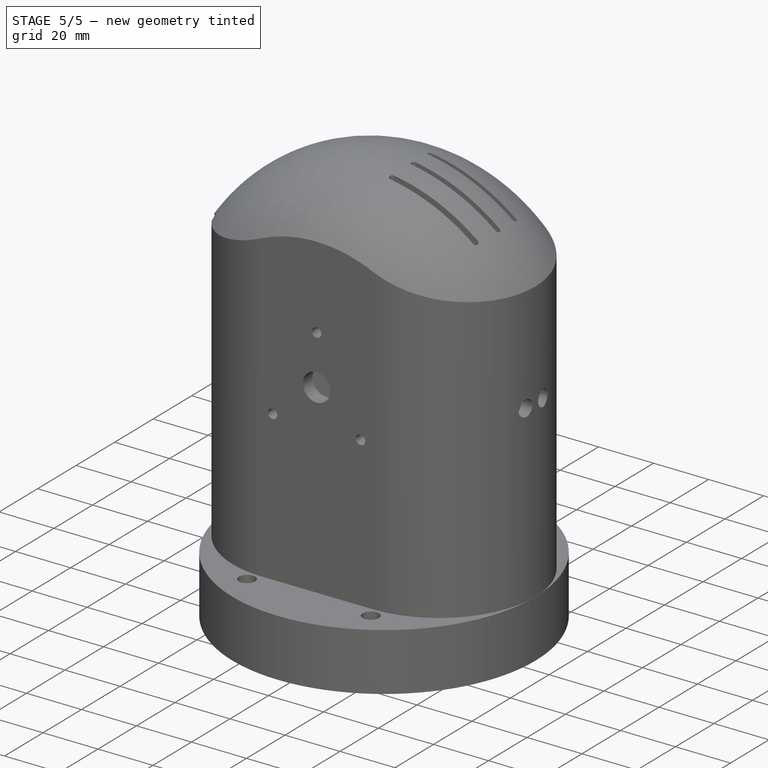
[diagram: stage 5 of 5 — iso view after this stage's code; geometry added in this stage tinted green]
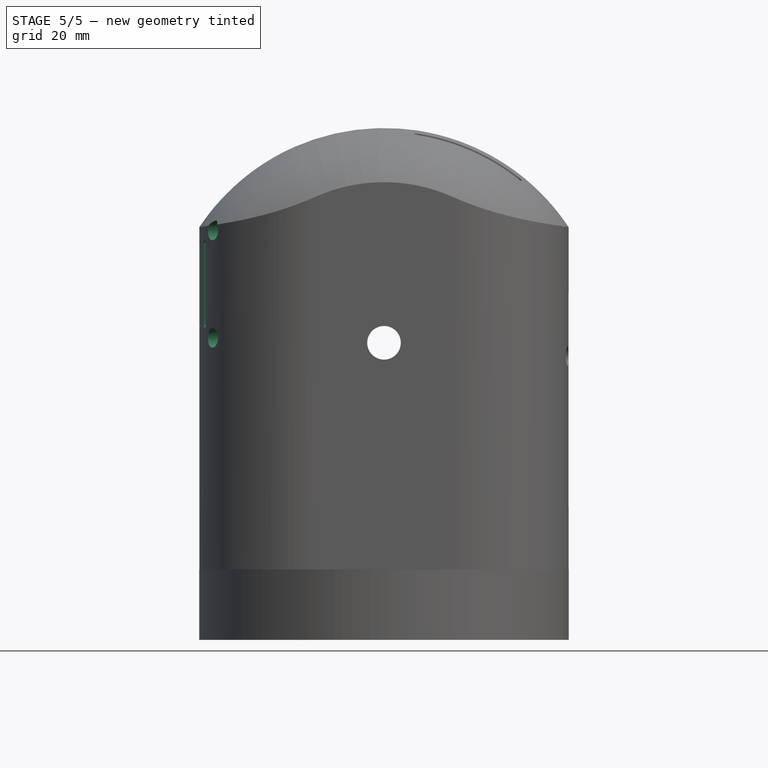
[diagram: stage 5 of 5 — front view after this stage's code; geometry added in this stage tinted green]
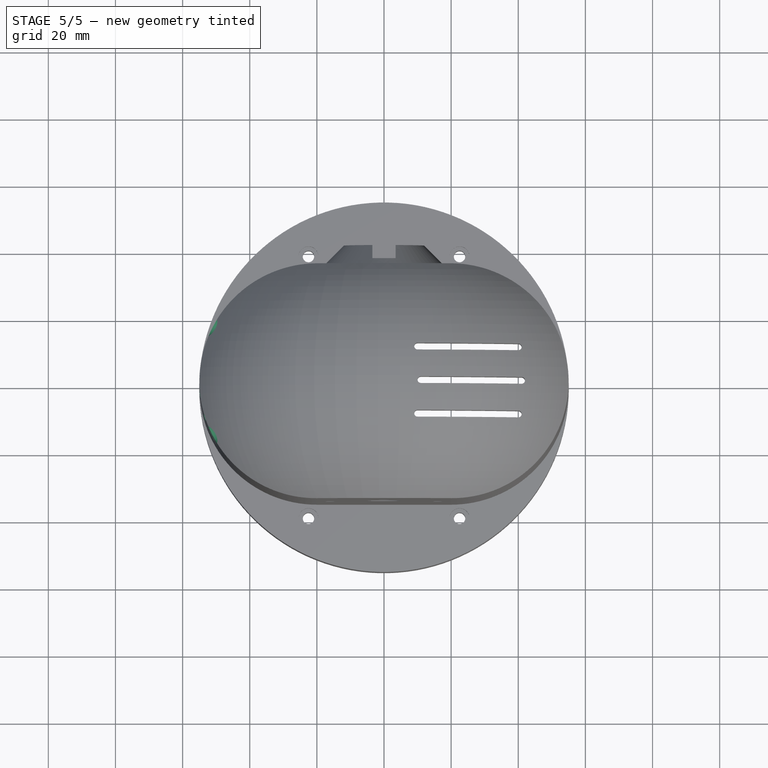
[diagram: stage 5 of 5 — top view after this stage's code; geometry added in this stage tinted green]
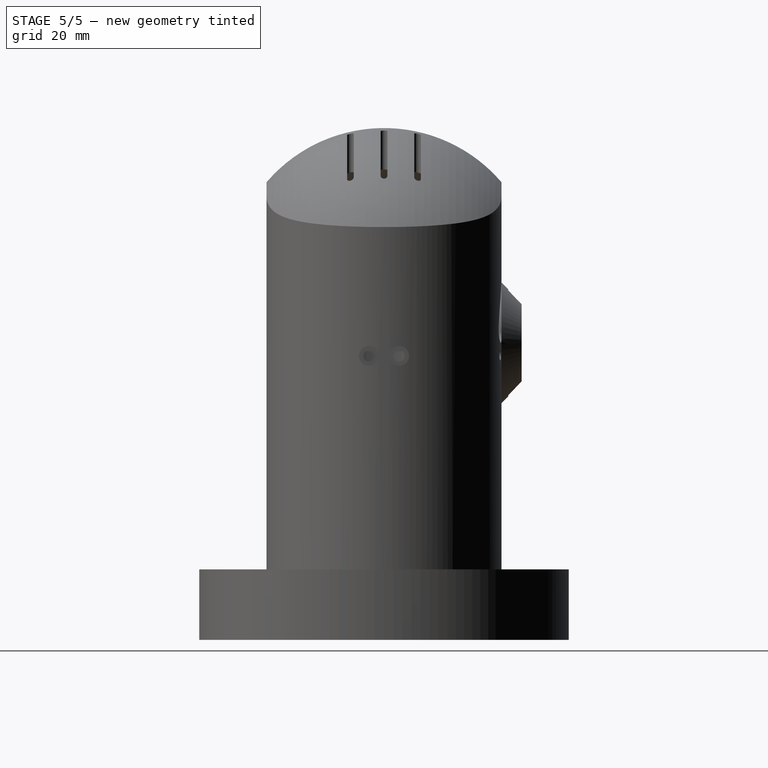
[diagram: stage 5 of 5 — right view after this stage's code; geometry added in this stage tinted green]
FEATURE [Sketcher::SketchObject] Sketch023
  ExternalGeometry = -> [Pocket013]
  FullyConstrained = true
  MapMode = 5
  Placement = pos=(0,0,86) rot=(1,0,0;3.14159rad)
  Support = -> [Pocket013]
  sketch-geometry (4):
    g0: LineSegment StartX=-46 StartY=20 StartZ=0 EndX=-26 EndY=20 EndZ=0
    g1: LineSegment StartX=-26 StartY=20 StartZ=0 EndX=-26 EndY=-20 EndZ=0
    g2: LineSegment StartX=-26 StartY=-20 StartZ=0 EndX=-46 EndY=-20 EndZ=0
    g3: LineSegment StartX=-46 StartY=-20 StartZ=0 EndX=-46 EndY=20 EndZ=0
  constraints (11):
    c: Coincident(g0,g1)
    c: Coincident(g1,g2)
    c: Coincident(g2,g3)
    c: Coincident(g3,g0)
    c: Horizontal(g0)
    c: Horizontal(g2)
    c: Vertical(g1)
    c: DistanceX(g2,g2) = 20
    c: DistanceY(g1,g1) = 40
    c: Symmetric(g2,g0,g-1)
    c: PointOnObject(g-3,g3)
FEATURE [PartDesign::Pocket] Pocket014
  BaseFeature = -> Pocket013
  Length = 40
  Length2 = 100
  Profile = -> Sketch023
  Refine = true
  Type = 0
FEATURE [Sketcher::SketchObject] Sketch024
  ExternalGeometry = -> [Pocket014]
  FullyConstrained = true
  MapMode = 5
  Placement = pos=(-46,0,0) rot=(0.57735,0.57735,0.57735;2.0944rad)
  Support = -> [Pocket014]
  expr: Constraints[18] = Spreadsheet.M3BoltBodyRadius
  sketch-geometry (25):
    g0: LineSegment StartX=-16 StartY=122 StartZ=0 EndX=16 EndY=122 EndZ=0
    g1: LineSegment StartX=16 StartY=122 StartZ=0 EndX=16 EndY=90 EndZ=0
    g2: LineSegment StartX=16 StartY=90 StartZ=0 EndX=-16 EndY=90 EndZ=0
    g3: LineSegment StartX=-16 StartY=90 StartZ=0 EndX=-16 EndY=122 EndZ=0
    g4: Circle CenterX=-16 CenterY=122 CenterZ=0 NormalX=0 NormalY=0 NormalZ=1 AngleXU=0 Radius=1.7
    g5: Circle CenterX=16 CenterY=122 CenterZ=0 NormalX=0 NormalY=0 NormalZ=1 AngleXU=0 Radius=1.7
    g6: Circle CenterX=16 CenterY=90 CenterZ=0 NormalX=0 NormalY=0 NormalZ=1 AngleXU=0 Radius=1.7
    g7: Circle CenterX=-16 CenterY=90 CenterZ=0 NormalX=0 NormalY=0 NormalZ=1 AngleXU=0 Radius=1.7
    g8: LineSegment StartX=-16 StartY=94 StartZ=0 EndX=16 EndY=94 EndZ=0
    g9: ArcOfCircle CenterX=-10.5 CenterY=118 CenterZ=0 NormalX=0 NormalY=0 NormalZ=1 AngleXU=0 Radius=1 StartAngle=-1.039e-13 EndAngle=3.14159
    g10: ArcOfCircle CenterX=-10.5 CenterY=94 CenterZ=0 NormalX=0 NormalY=0 NormalZ=1 AngleXU=0 Radius=1 StartAngle=3.14159 EndAngle=6.28319
    g11: LineSegment StartX=-11.5 StartY=118 StartZ=0 EndX=-11.5 EndY=94 EndZ=0
    g12: LineSegment StartX=-9.5 StartY=118 StartZ=0 EndX=-9.5 EndY=94 EndZ=0
    g13: ArcOfCircle CenterX=-3.5 CenterY=118 CenterZ=0 NormalX=0 NormalY=0 NormalZ=1 AngleXU=0 Radius=1 StartAngle=-3.6e-15 EndAngle=3.14159
    g14: ArcOfCircle CenterX=-3.5 CenterY=94 CenterZ=0 NormalX=0 NormalY=0 NormalZ=1 AngleXU=0 Radius=1 StartAngle=3.14159 EndAngle=6.28319
    g15: LineSegment StartX=-4.5 StartY=118 StartZ=0 EndX=-4.5 EndY=94 EndZ=0
    g16: LineSegment StartX=-2.5 StartY=118 StartZ=0 EndX=-2.5 EndY=94 EndZ=0
    g17: ArcOfCircle CenterX=3.5 CenterY=118 CenterZ=0 NormalX=0 NormalY=0 NormalZ=1 AngleXU=0 Radius=1 StartAngle=9e-16 EndAngle=3.14159
    g18: ArcOfCircle CenterX=3.5 CenterY=94 CenterZ=0 NormalX=0 NormalY=0 NormalZ=1 AngleXU=0 Radius=1 StartAngle=3.14159 EndAngle=6.28319
    g19: LineSegment StartX=2.5 StartY=118 StartZ=0 EndX=2.5 EndY=94 EndZ=0
    g20: LineSegment StartX=4.5 StartY=118 StartZ=0 EndX=4.5 EndY=94 EndZ=0
    g21: ArcOfCircle CenterX=10.5 CenterY=118 CenterZ=0 NormalX=0 NormalY=0 NormalZ=1 AngleXU=0 Radius=1 StartAngle=-1.8e-15 EndAngle=3.14159
    g22: ArcOfCircle CenterX=10.5 CenterY=94 CenterZ=0 NormalX=0 NormalY=0 NormalZ=1 AngleXU=0 Radius=1 StartAngle=3.14159 EndAngle=6.28319
    g23: LineSegment StartX=9.5 StartY=118 StartZ=0 EndX=9.5 EndY=94 EndZ=0
    g24: LineSegment StartX=11.5 StartY=118 StartZ=0 EndX=11.5 EndY=94 EndZ=0
  constraints (61):
    c: Coincident(g0,g1)
    c: Coincident(g1,g2)
    c: Coincident(g2,g3)
    c: Coincident(g3,g0)
    c: Horizontal(g0)
    c: Vertical(g1)
    c: Vertical(g3)
    c: Symmetric(g1,g2,g-2)
    c: Equal(g2,g1)
    c: DistanceY(g-3,g1) = 4
    c: DistanceX(g2,g2) = 32
    c: Coincident(g4,g0)
    c: Coincident(g5,g0)
    c: Coincident(g6,g1)
    c: Coincident(g7,g2)
    c: Equal(g7,g4)
    c: Equal(g4,g5)
    c: Equal(g5,g6)
    c: Radius(g6) = 1.7
    c: Horizontal(g8)
    c: PointOnObject(g8,g3)
    c: PointOnObject(g8,g1)
    c: DistanceY(g6,g8) = 4
    c: Tangent(g9,g12) = 1.5708
    c: Tangent(g9,g11) = -1.5708
    c: Tangent(g11,g10) = -1.5708
    c: Tangent(g12,g10) = 1.5708
    c: Vertical(g11)
    c: Equal(g9,g10)
    c: Tangent(g13,g16) = 1.5708
    c: Tangent(g13,g15) = -1.5708
    c: Tangent(g15,g14) = -1.5708
    c: Tangent(g16,g14) = 1.5708
    c: Vertical(g15)
    c: Equal(g13,g14)
    c: Tangent(g17,g20) = 1.5708
    c: Tangent(g17,g19) = -1.5708
    c: Tangent(g19,g18) = -1.5708
    c: Tangent(g20,g18) = 1.5708
    c: Vertical(g19)
    c: Equal(g17,g18)
    c: Tangent(g21,g24) = 1.5708
    c: Tangent(g21,g23) = -1.5708
    c: Tangent(g23,g22) = -1.5708
    c: Tangent(g24,g22) = 1.5708
    c: Vertical(g23)
    c: Equal(g21,g22)
    c: PointOnObject(g22,g8)
    c: PointOnObject(g18,g8)
    c: Equal(g10,g14)
    c: Equal(g14,g18)
    c: Equal(g18,g22)
    c: Equal(g20,g23)
    c: Equal(g23,g16)
    c: Equal(g16,g12)
    c: Radius(g10) = 1
    c: DistanceX(g10,g14) = 7
    c: Symmetric(g14,g18,g-2)
    c: DistanceX(g14,g18) = 7
    c: Symmetric(g22,g10,g-2)
    c: DistanceY(g12,g12) = 24
FEATURE [PartDesign::Pocket] Pocket015
  BaseFeature = -> Pocket014
  Length = 11
  Length2 = 100
  Profile = -> Sketch024
  Refine = true
  Type = 1
FEATURE [PartDesign::Plane] DatumPlane005
  AttachmentOffset = pos=(0,0,-55) rot=(0,0,1;0rad)
  Length = 138.04
  MapMode = 5
  Placement = pos=(-55,1.22e-14,-1.22e-14) rot=(0.57735,0.57735,0.57735;2.0944rad)
  ResizeMode = 0
  Support = -> [YZ_Plane002]
  Width = 205.454
FEATURE [Sketcher::SketchObject] Sketch025
  ExternalGeometry = -> [Pocket015]
  FullyConstrained = true
  MapMode = 5
  Placement = pos=(-55,1.22e-14,-1.22e-14) rot=(0.57735,0.57735,0.57735;2.0944rad)
  Support = -> [DatumPlane005]
  expr: Constraints[7] = Spreadsheet.M3BoltHeadRadius
  sketch-geometry (4):
    g0: Circle CenterX=16 CenterY=90 CenterZ=0 NormalX=0 NormalY=0 NormalZ=1 AngleXU=0 Radius=2.95
    g1: Circle CenterX=-16 CenterY=90 CenterZ=0 NormalX=0 NormalY=0 NormalZ=1 AngleXU=0 Radius=2.95
    g2: Circle CenterX=-16 CenterY=122 CenterZ=0 NormalX=0 NormalY=0 NormalZ=1 AngleXU=0 Radius=2.95
    g3: Circle CenterX=16 CenterY=122 CenterZ=0 NormalX=0 NormalY=0 NormalZ=1 AngleXU=0 Radius=2.95
  constraints (8):
    c: Coincident(g0,g-5)
    c: Coincident(g1,g-4)
    c: Coincident(g2,g-3)
    c: Coincident(g3,g-6)
    c: Equal(g0,g3)
    c: Equal(g3,g1)
    c: Equal(g1,g2)
    c: Radius(g1) = 2.95
FEATURE [PartDesign::Pocket] Pocket016
  BaseFeature = -> Pocket015
  Length = 7
  Length2 = 100
  Profile = -> Sketch025
  Refine = true
  Reversed = true
  Type = 0
FEATURE [Sketcher::SketchObject] Sketch026
  FullyConstrained = true
  MapMode = 5
  Placement = pos=(0,0,0) rot=(1,0,0;1.5708rad)
  Support = -> [XZ_Plane002]
  sketch-geometry (4):
    g0: LineSegment StartX=-40 StartY=30.5 StartZ=0 EndX=-52 EndY=30.5 EndZ=0
    g1: LineSegment StartX=-52 StartY=30.5 StartZ=0 EndX=-52 EndY=47.5 EndZ=0
    g2: LineSegment StartX=-52 StartY=47.5 StartZ=0 EndX=-40 EndY=35.5 EndZ=0
    g3: LineSegment StartX=-40 StartY=35.5 StartZ=0 EndX=-40 EndY=30.5 EndZ=0
  constraints (12):
    c: Horizontal(g0)
    c: Coincident(g0,g1)
    c: Vertical(g1)
    c: Coincident(g1,g2)
    c: Coincident(g2,g3)
    c: Coincident(g3,g0)
    c: Vertical(g3)
    c: DistanceX(g0,g-1) = 40
    c: DistanceX(g0,g0) = 12
    c: DistanceY(g3,g3) = 5
    c: DistanceY(g-1,g0) = 30.5
    c: Angle(g1,g2) = 0.785398
FEATURE [PartDesign::Pad] Pad006
  BaseFeature = -> Pocket016
  Direction = (1,1,1)
  Length = 15
  Length2 = 100
  Midplane = true
  Profile = -> Sketch026
  Refine = true
  Type = 0
FEATURE [Sketcher::SketchObject] Sketch027
  ExternalGeometry = -> [Pad006]
  FullyConstrained = true
  MapMode = 5
  Placement = pos=(0,6.8e-15,30.5) rot=(1,0,0;3.14159rad)
  Support = -> [Pad006]
  expr: Constraints[1] = Spreadsheet.M3BoltBodyRadius
  sketch-geometry (1):
    g0: Circle CenterX=-46.4 CenterY=0 CenterZ=0 NormalX=0 NormalY=0 NormalZ=1 AngleXU=0 Radius=1.7
  constraints (3):
    c: PointOnObject(g0,g-1)
    c: Radius(g0) = 1.7
    c: DistanceX(g0,g-3) = 6.4
FEATURE [PartDesign::Pocket] Pocket017
  BaseFeature = -> Pad006
  Length = 15
  Length2 = 100
  Profile = -> Sketch027
  Refine = true
  Type = 0
FEATURE [PartDesign::Plane] DatumPlane006
  AttachmentOffset = pos=(0,0,-3.35) rot=(0,0,1;0rad)
  Length = 132.118
  MapMode = 5
  Placement = pos=(0,7.5e-15,33.85) rot=(1,0,0;3.14159rad)
  ResizeMode = 0
  Support = -> [Pocket017]
  Width = 132.101
FEATURE [Sketcher::SketchObject] Sketch028
  ExternalGeometry = -> [Pocket017]
  FullyConstrained = true
  MapMode = 5
  Placement = pos=(0,7.5e-15,33.85) rot=(1,0,0;3.14159rad)
  Support = -> [DatumPlane006]
  expr: Constraints[19] = Spreadsheet.M3NutCircumradius
  sketch-geometry (10):
    g0: LineSegment StartX=-49.75 StartY=0 StartZ=0 EndX=-48.075 EndY=-2.90119 EndZ=0
    g1: LineSegment StartX=-48.075 StartY=-2.90119 StartZ=0 EndX=-44.725 EndY=-2.90119 EndZ=0
    g2: LineSegment StartX=-44.725 StartY=-2.90119 StartZ=0 EndX=-43.05 EndY=0 EndZ=0
    g3: LineSegment StartX=-43.05 StartY=0 StartZ=0 EndX=-44.725 EndY=2.90119 EndZ=0
    g4: LineSegment StartX=-44.725 StartY=2.90119 StartZ=0 EndX=-48.075 EndY=2.90119 EndZ=0
    g5: LineSegment StartX=-48.075 StartY=2.90119 StartZ=0 EndX=-49.75 EndY=0 EndZ=0
    g6: Circle CenterX=-46.4 CenterY=0 CenterZ=0 NormalX=0 NormalY=0 NormalZ=1 AngleXU=0 Radius=3.35
    g7: LineSegment StartX=-48.075 StartY=2.90119 StartZ=0 EndX=-38.075 EndY=2.90119 EndZ=0
    g8: LineSegment StartX=-38.075 StartY=2.90119 StartZ=0 EndX=-38.075 EndY=-2.90119 EndZ=0
    g9: LineSegment StartX=-38.075 StartY=-2.90119 StartZ=0 EndX=-48.075 EndY=-2.90119 EndZ=0
  constraints (24):
    c: Coincident(g0,g1)
    c: Coincident(g1,g2)
    c: Coincident(g2,g3)
    c: Coincident(g3,g4)
    c: Coincident(g4,g5)
    c: Coincident(g5,g0)
    c: Equal(g0, g1-g5) x5
    c: PointOnObject(g0,g6)
    c: PointOnObject(g1,g6)
    c: PointOnObject(g2,g6)
    c: PointOnObject(g3,g6)
    c: PointOnObject(g4,g6)
    c: PointOnObject(g5,g6)
    c: Coincident(g6,g-3)
    c: PointOnObject(g5,g-1)
    c: Radius(g6) = 3.35
    c: Coincident(g7,g8)
    c: Coincident(g8,g9)
    c: Horizontal(g7)
    c: Horizontal(g9)
    c: Vertical(g8)
    c: Coincident(g5,g7)
    c: Coincident(g9,g0)
    c: DistanceX(g9,g9) = 10
FEATURE [PartDesign::Pocket] Pocket018
  BaseFeature = -> Pocket017
  Length = 3
  Length2 = 100
  Midplane = true
  Profile = -> Sketch028
  Refine = true
  Type = 0
  expr: Length = Spreadsheet.M3NutThickness
FEATURE [Sketcher::SketchObject] Sketch029
  ExternalGeometry = -> [Pocket018]
  FullyConstrained = true
  MapMode = 5
  Placement = pos=(0,6.8e-15,30.5) rot=(1,0,0;3.14159rad)
  Support = -> [Pocket018]
  sketch-geometry (8):
    g0: LineSegment StartX=-49.0474 StartY=7.5 StartZ=0 EndX=-40 EndY=7.5 EndZ=0
    g1: LineSegment StartX=-40 StartY=7.5 StartZ=0 EndX=-40 EndY=5.6 EndZ=0
    g2: LineSegment StartX=-40 StartY=5.6 StartZ=0 EndX=-49.4727 EndY=5.6 EndZ=0
    g3: LineSegment StartX=-49.0474 StartY=-7.5 StartZ=0 EndX=-40 EndY=-7.5 EndZ=0
    g4: LineSegment StartX=-40 StartY=-7.5 StartZ=0 EndX=-40 EndY=-5.6 EndZ=0
    g5: LineSegment StartX=-40 StartY=-5.6 StartZ=0 EndX=-49.4727 EndY=-5.6 EndZ=0
    g6: ArcOfCircle CenterX=-20 CenterY=1.6e-15 CenterZ=0 NormalX=0 NormalY=0 NormalZ=1 AngleXU=0 Radius=30 StartAngle=2.88891 EndAngle=2.95382
    g7: ArcOfCircle CenterX=-20 CenterY=1.6e-15 CenterZ=0 NormalX=0 NormalY=0 NormalZ=1 AngleXU=0 Radius=30 StartAngle=3.32936 EndAngle=3.39427
  constraints (19):
    c: Coincident(g-4,g0)
    c: Coincident(g0,g-4)
    c: Coincident(g0,g1)
    c: Vertical(g1)
    c: Coincident(g1,g2)
    c: Horizontal(g2)
    c: Coincident(g-5,g3)
    c: Coincident(g3,g-5)
    c: Coincident(g3,g4)
    c: Coincident(g4,g5)
    c: Horizontal(g5)
    c: Coincident(g6,g-3)
    c: Coincident(g6,g0)
    c: Coincident(g6,g2)
    c: Coincident(g7,g6)
    c: Coincident(g7,g3)
    c: Coincident(g7,g5)
    c: DistanceY(g4,g1) = 11.2
    c: Symmetric(g1,g4,g-1)
FEATURE [PartDesign::Pad] Pad007
  BaseFeature = -> Pocket018
  Direction = (1,1,1)
  Length = 1.5
  Length2 = 100
  Profile = -> Sketch029
  Refine = true
  Type = 0
FEATURE [PartDesign::CoordinateSystem] LCS_Art3Body
  AttacherType = Attacher::AttachEngine3D
FEATURE [PartDesign::CoordinateSystem] LCS_Pulley
  AttacherType = Attacher::AttachEngine3D
  MapMode = 45
  Placement = pos=(8.9e-15,-35,85.8333) rot=(-1,0,0;1.5708rad)
  Support = -> [Pad007]
FEATURE [PartDesign::CoordinateSystem] LCS_MotorHolder
  AttacherType = Attacher::AttachEngine3D
  MapMode = 45
  Placement = pos=(49,-9e-15,84.6) rot=(0.707107,0,0.707107;3.14159rad)
  Support = -> [Pad007]
FEATURE [PartDesign::CoordinateSystem] LCS_Bearing
  AttacherType = Attacher::AttachEngine3D
  MapMode = 11
  Placement = pos=(3.6e-15,32,88.5) rot=(0.57735,0.57735,0.57735;4.18879rad)
  Support = -> [Pad007]
FEATURE [PartDesign::CoordinateSystem] LCS_BearingFix
  AttacherType = Attacher::AttachEngine3D
  MapMode = 45
  Placement = pos=(-8e-15,37,88.5) rot=(-1,0,0;1.5708rad)
  Support = -> [Pad007]
FEATURE [PartDesign::CoordinateSystem] LCS_OptoRing
  AttacherType = Attacher::AttachEngine3D
  MapMode = 45
  Placement = pos=(-1.06e-14,33,85) rot=(0.57735,0.57735,0.57735;4.18879rad)
  Support = -> [Pad007]
FEATURE [PartDesign::CoordinateSystem] LCS_Fan
  AttacherType = Attacher::AttachEngine3D
  MapMode = 45
  Placement = pos=(-46,8e-15,106) rot=(0.57735,0.57735,0.57735;2.0944rad)
  Support = -> [Pad007]
FEATURE [PartDesign::CoordinateSystem] LCS_OptoSensor
  AttacherType = Attacher::AttachEngine3D
  MapMode = 11
  Placement = pos=(-46.4,6.8e-15,30.5) rot=(0.707107,-0.707107,0;3.14159rad)
  Support = -> [Pad007]
FEATURE [PartDesign::Line] HoleAxis_1
  AttacherType = Attacher::AttachEngineLine
  Length = 4.80758
  MapMode = 19
  Placement = pos=(-48,-16,122) rot=(0.57735,0.57735,0.57735;2.0944rad)
  ResizeMode = 1
  Support = -> [Pad007]
FEATURE [PartDesign::Line] HoleAxis_2
  AttacherType = Attacher::AttachEngineLine
  Length = 4.80758
  MapMode = 19
  Placement = pos=(-48,-16,90) rot=(0.57735,0.57735,0.57735;2.0944rad)
  ResizeMode = 1
  Support = -> [Pad007]
FEATURE [PartDesign::Line] HoleAxis_3
  AttacherType = Attacher::AttachEngineLine
  Length = 4.80758
  MapMode = 19
  Placement = pos=(-48,16,122) rot=(0.57735,0.57735,0.57735;2.0944rad)
  ResizeMode = 1
  Support = -> [Pad007]
FEATURE [PartDesign::Line] HoleAxis_4
  AttacherType = Attacher::AttachEngineLine
  Length = 4.80758
  MapMode = 19
  Placement = pos=(-48,16,90) rot=(0.57735,0.57735,0.57735;2.0944rad)
  ResizeMode = 1
  Support = -> [Pad007]
FEATURE [PartDesign::Line] HoleAxis_5
  AttacherType = Attacher::AttachEngineLine
  Length = 4.80758
  MapMode = 19
  Placement = pos=(51,-4.5,84.6) rot=(0.57735,-0.57735,-0.57735;2.0944rad)
  ResizeMode = 1
  Support = -> [Pad007]
FEATURE [PartDesign::Line] HoleAxis_6
  AttacherType = Attacher::AttachEngineLine
  Length = 4.80758
  MapMode = 19
  Placement = pos=(51,4.5,84.6) rot=(0.57735,-0.57735,-0.57735;2.0944rad)
  ResizeMode = 1
  Support = -> [Pad007]
FEATURE [PartDesign::Line] HoleAxis_7
  AttacherType = Attacher::AttachEngineLine
  Length = 4.80758
  MapMode = 19
  Placement = pos=(16,-30,75.5) rot=(1,0,0;1.5708rad)
  ResizeMode = 1
  Support = -> [Pad007]
FEATURE [PartDesign::Line] HoleAxis_8
  AttacherType = Attacher::AttachEngineLine
  Length = 4.80758
  MapMode = 19
  Placement = pos=(0,-30,106.5) rot=(1,0,0;1.5708rad)
  ResizeMode = 1
  Support = -> [Pad007]
FEATURE [PartDesign::Line] HoleAxis_9
  AttacherType = Attacher::AttachEngineLine
  Length = 4.80758
  MapMode = 19
  Placement = pos=(-16,-30,75.5) rot=(1,0,0;1.5708rad)
  ResizeMode = 1
  Support = -> [Pad007]
FEATURE [PartDesign::Line] HoleAxis_10
  AttacherType = Attacher::AttachEngineLine
  Length = 4.80758
  MapMode = 19
  Placement = pos=(0,33,99.5) rot=(0,0.707107,0.707107;3.14159rad)
  ResizeMode = 1
  Support = -> [Pad007]
FEATURE [PartDesign::Line] HoleAxis_11
  AttacherType = Attacher::AttachEngineLine
  Length = 4.80758
  MapMode = 19
  Placement = pos=(0,33,77.5) rot=(0,0.707107,0.707107;3.14159rad)
  ResizeMode = 1
  Support = -> [Pad007]
FEATURE [PartDesign::Line] HoleAxis_12
  AttacherType = Attacher::AttachEngineLine
  Length = 4.80758
  MapMode = 19
  Placement = pos=(25,33,85) rot=(0,0.707107,0.707107;3.14159rad)
  ResizeMode = 1
  Support = -> [Pad007]
FEATURE [PartDesign::Line] HoleAxis_13
  AttacherType = Attacher::AttachEngineLine
  Length = 4.80758
  MapMode = 19
  Placement = pos=(-25,33,85) rot=(0,0.707107,0.707107;3.14159rad)
  ResizeMode = 1
  Support = -> [Pad007]
FEATURE [PartDesign::Line] HoleAxis_14
  AttacherType = Attacher::AttachEngineLine
  Length = 4.80758
  MapMode = 19
  Placement = pos=(-46.4,7.2e-15,32.35) rot=(-1,0,0;3.14159rad)
  ResizeMode = 1
  Support = -> [Pad007]
FEATURE [PartDesign::Line] HoleAxis_15
  AttacherType = Attacher::AttachEngineLine
  Length = 4.80758
  MapMode = 19
  Placement = pos=(22.5,39,18) rot=(-1,0,0;3.14159rad)
  ResizeMode = 1
  Support = -> [Pad007]
FEATURE [PartDesign::Line] HoleAxis_16
  AttacherType = Attacher::AttachEngineLine
  Length = 4.80758
  MapMode = 19
  Placement = pos=(-22.5,39,18) rot=(-1,0,0;3.14159rad)
  ResizeMode = 1
  Support = -> [Pad007]
FEATURE [PartDesign::Line] HoleAxis_17
  AttacherType = Attacher::AttachEngineLine
  Length = 4.80758
  MapMode = 19
  Placement = pos=(22.5,-39,18) rot=(-1,0,0;3.14159rad)
  ResizeMode = 1
  Support = -> [Pad007]
FEATURE [PartDesign::Line] HoleAxis_18
  AttacherType = Attacher::AttachEngineLine
  Length = 4.80758
  MapMode = 19
  Placement = pos=(-22.5,-39,18) rot=(-1,0,0;3.14159rad)
  ResizeMode = 1
  Support = -> [Pad007]
FEATURE [PartDesign::CoordinateSystem] LCS_Bottom
  AttacherType = Attacher::AttachEngine3D
FEATURE [PartDesign::Body] Body002  label="Art3Body"
  BaseFeature = -> Cut
  Group = -> [BaseFeature,Sketch009,Pocket002,Sketch010,Pocket003,Sketch011,Pocket004,DatumPlane003,Sketch012,Pocket005,Sketch013,Pocket006,Sketch014,Pocket007,DatumLine,Sketch015,Revolution,Sketch016,Pocket008,Sketch017,Pocket009,Sketch018,Pocket010,DatumPlane004,Sketch019,Pocket011,Sketch020,Pad005,Draft,Sketch021,Pocket012,Sketch022,Pocket013,Sketch023,Pocket014,Sketch024,Pocket015,DatumPlane005,Sketch025,+37 more]
  Origin = -> Origin002
  Tip = -> Pad007
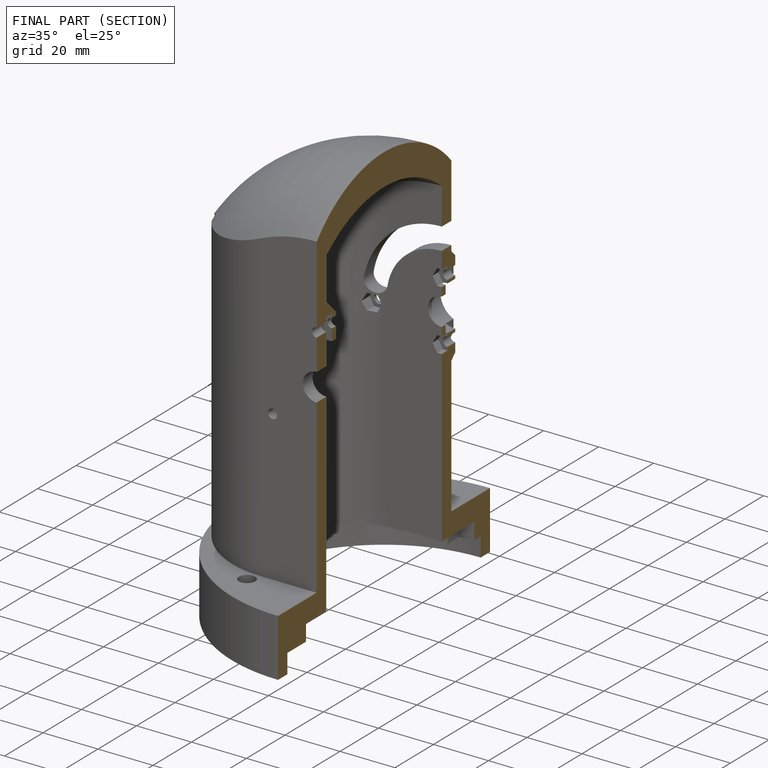
[diagram: finished part — half-section view (interior)]
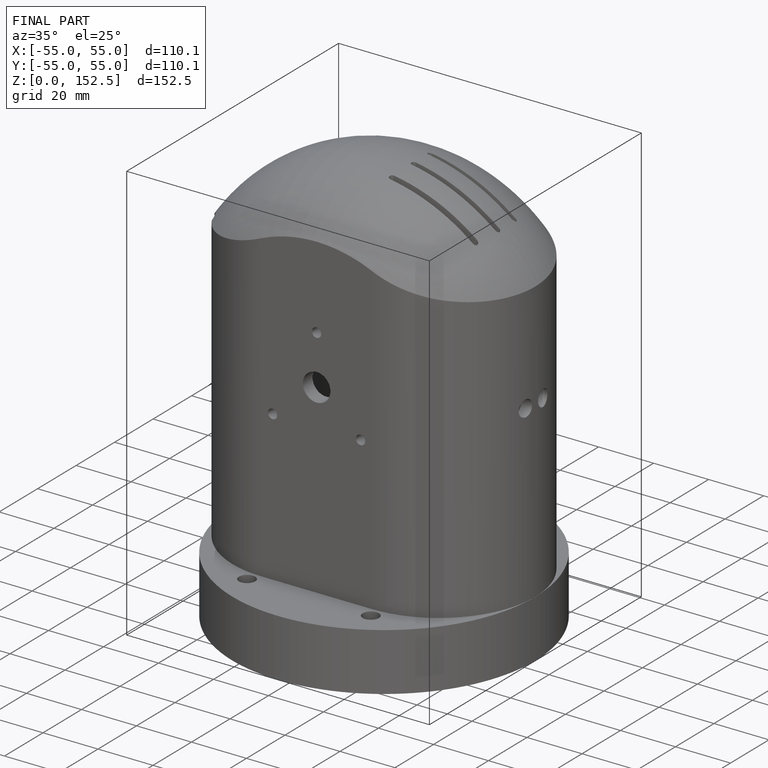
[diagram: finished part — iso view with bounding-box wireframe]
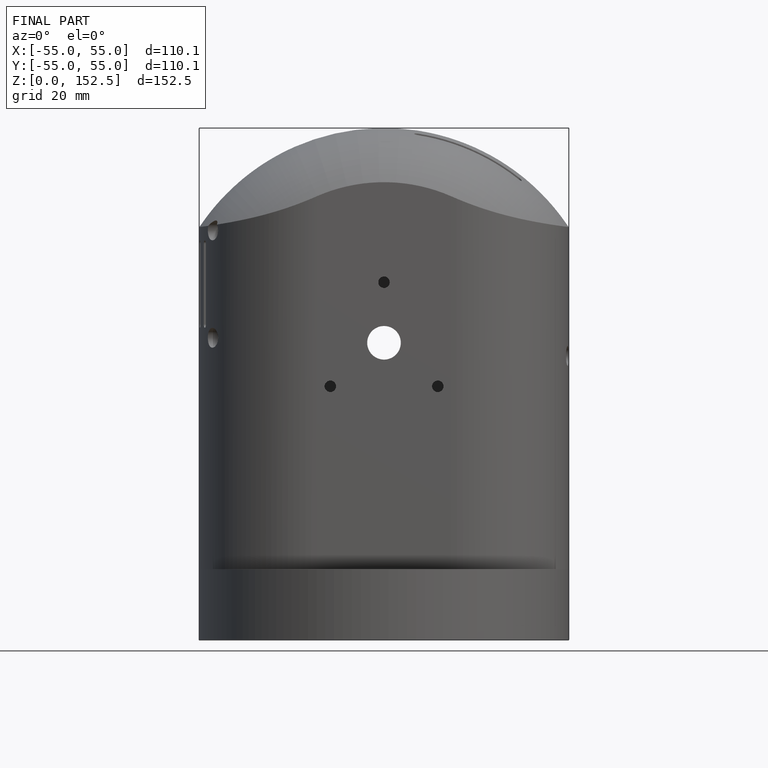
[diagram: finished part — front view with bounding-box wireframe]
